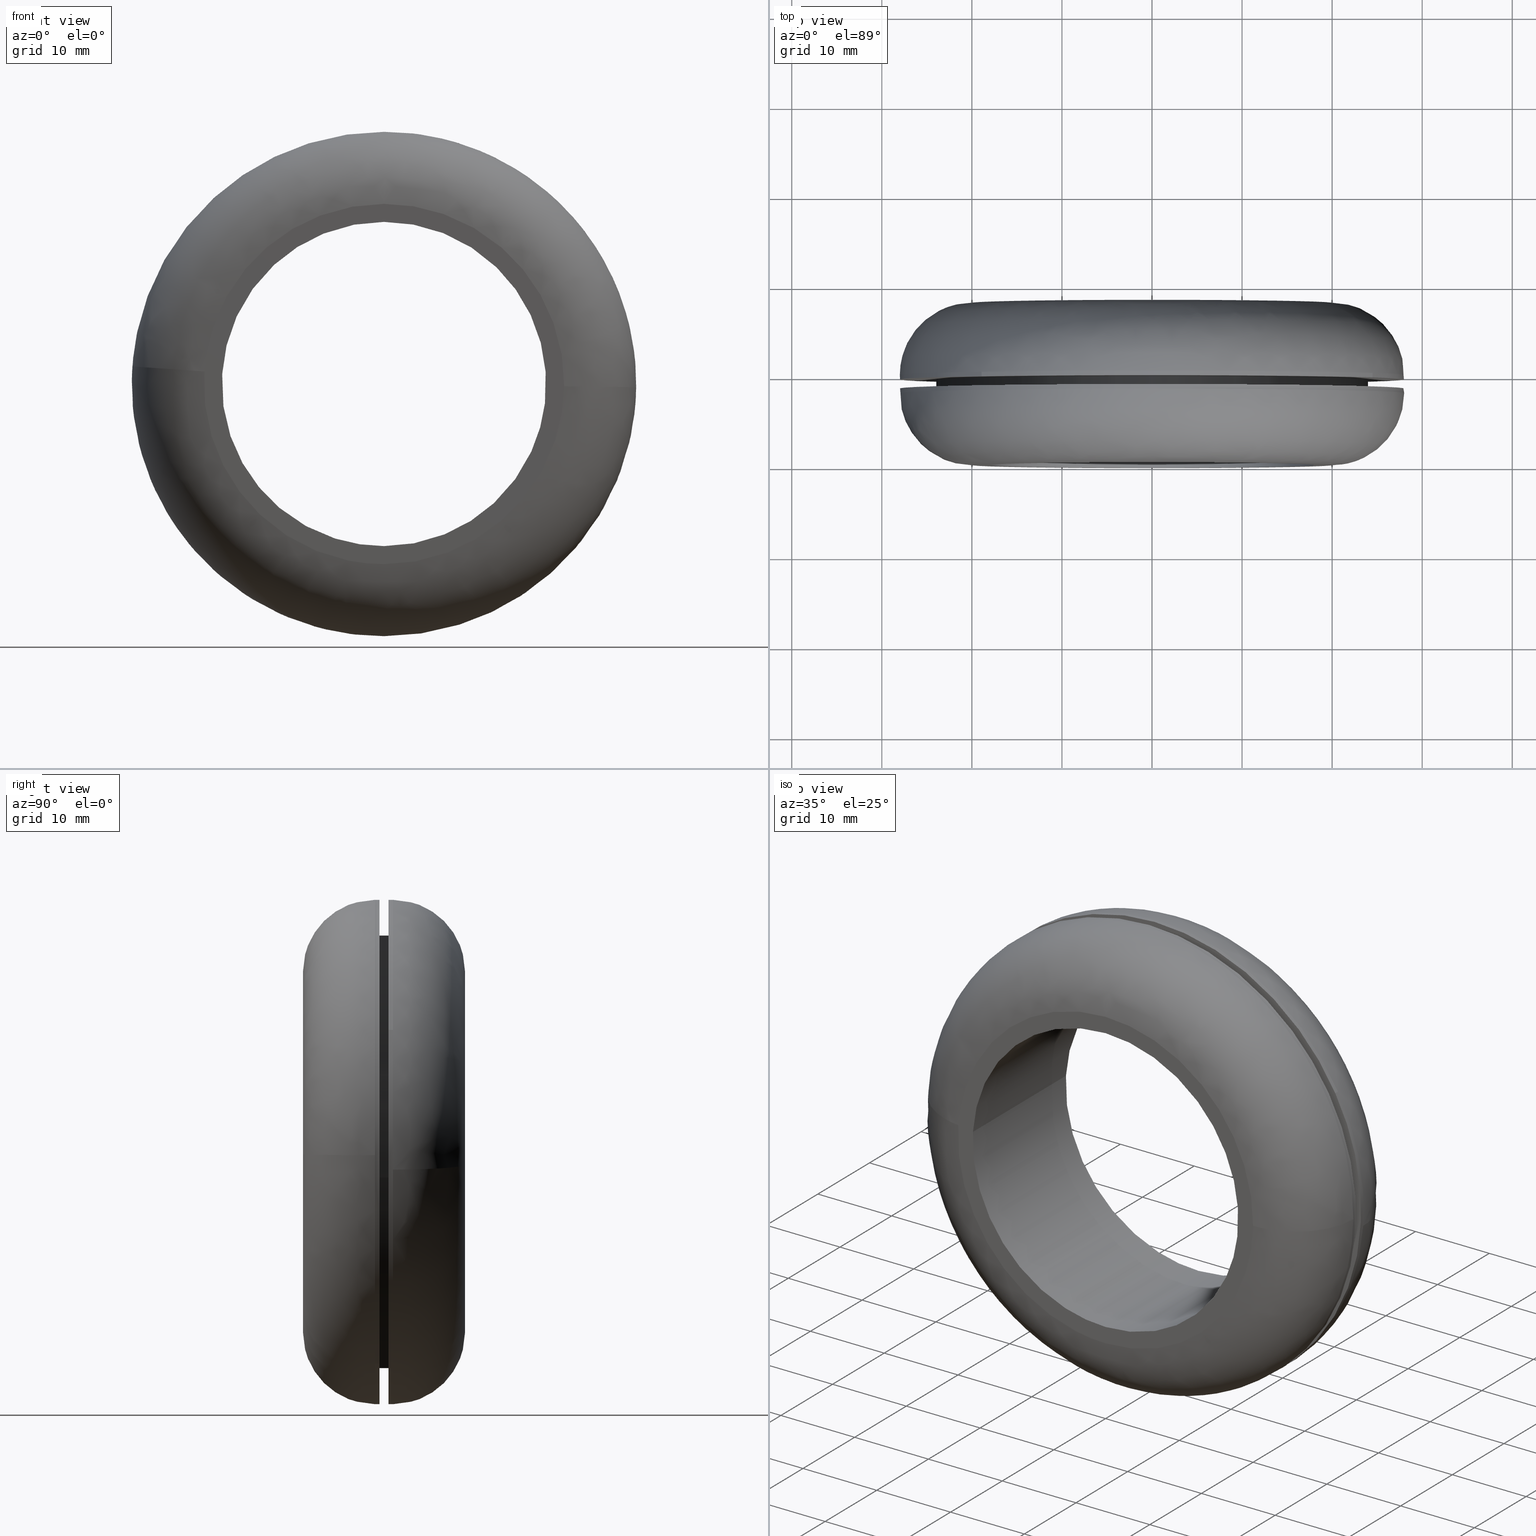
[diagram: canonical four-view strip — front | top / right | iso, engineering-drawing reading convention]
A machine part, canonical four-view strip (front | top / right | iso — engineering-drawing reading convention). The complete STEP part file that produces these views, byte-faithful:
ISO-10303-21;
HEADER;
/****************************************************************
 * Generated by software with PDE/Lib inside                    *
 * PDElib Version 4.4.1-0003, patched  Thursday August 19 11:58 *
 * International Technegroup Inc. (www.iti-oh.com)              *
 ****************************************************************/
FILE_DESCRIPTION((''),'2;1');
FILE_NAME('','2005-12-14T13:40:36',(''),(''),'','CADfix','');
FILE_SCHEMA(('AUTOMOTIVE_DESIGN'));
ENDSEC;
DATA;
#5=APPLICATION_CONTEXT('automotive design');
#6=APPLICATION_PROTOCOL_DEFINITION('Draft International Standard','automotive_design',1998,#5);
#7=PRODUCT_CONTEXT('None',#5,'mechanical');
#8=PRODUCT('grommet','','None',(#7));
#9=PRODUCT_RELATED_PRODUCT_CATEGORY('part','description',(#8));
#10=PRODUCT_DEFINITION_FORMATION('None','None',#8);
#11=PRODUCT_DEFINITION_CONTEXT('part definition',#5,'design');
#12=PRODUCT_DEFINITION('None','None',#10,#11);
#18=(NAMED_UNIT(*)PLANE_ANGLE_UNIT()SI_UNIT($,.RADIAN.));
#19=DIMENSIONAL_EXPONENTS(0.0,0.0,0.0,0.0,0.0,0.0,0.0);
#20=PLANE_ANGLE_MEASURE_WITH_UNIT(PLANE_ANGLE_MEASURE(0.017453292500000),#18);
#24=(CONVERSION_BASED_UNIT('DEGREE',#20)NAMED_UNIT(#19)PLANE_ANGLE_UNIT());
#28=(NAMED_UNIT(*)SI_UNIT($,.STERADIAN.)SOLID_ANGLE_UNIT());
#32=(LENGTH_UNIT()NAMED_UNIT(*)SI_UNIT(.MILLI.,.METRE.));
#34=UNCERTAINTY_MEASURE_WITH_UNIT(LENGTH_MEASURE(0.001000000000000),#32,'DISTANCE_ACCURACY_VALUE','');
#36=(GEOMETRIC_REPRESENTATION_CONTEXT(3)GLOBAL_UNCERTAINTY_ASSIGNED_CONTEXT((#34))GLOBAL_UNIT_ASSIGNED_CONTEXT((#24,#28,#32))REPRESENTATION_CONTEXT('None','None'));
#37=AXIS2_PLACEMENT_3D('',#38,#39,#40);
#38=CARTESIAN_POINT('',(0.0,0.0,0.0));
#39=DIRECTION('',(0.0,0.0,1.0));
#40=DIRECTION('',(1.0,0.0,0.0));
#41=ADVANCED_BREP_SHAPE_REPRESENTATION('',(#37,#1233),#36);
#42=PRODUCT_DEFINITION_SHAPE('','',#12);
#43=SHAPE_DEFINITION_REPRESENTATION(#42,#41);
#44=CARTESIAN_POINT('',(15.196408122809663,8.512500000001223,-23.517422906538968));
#45=CARTESIAN_POINT('',(16.558674342916341,8.512500000001223,-22.637158366715511));
#46=CARTESIAN_POINT('',(17.810190167777389,8.512500000001223,-21.605488334856151));
#47=CARTESIAN_POINT('',(39.415678502633540,8.512500000001223,-3.795298167078766));
#48=CARTESIAN_POINT('',(21.605488334856151,8.512500000001223,17.810190167777389));
#49=CARTESIAN_POINT('',(3.795298167078766,8.512500000001223,39.415678502633540));
#50=CARTESIAN_POINT('',(-17.810190167777389,8.512500000001223,21.605488334856151));
#51=CARTESIAN_POINT('',(-39.415678502633540,8.512500000001223,3.795298167078766));
#52=CARTESIAN_POINT('',(-21.605488334856151,8.512500000001223,-17.810190167777389));
#53=CARTESIAN_POINT('',(15.196408122809663,7.987187499949879,-23.517422906538968));
#54=CARTESIAN_POINT('',(16.558674342916341,7.987187499949878,-22.637158366715511));
#55=CARTESIAN_POINT('',(17.810190167777389,7.987187499949879,-21.605488334856151));
#56=CARTESIAN_POINT('',(39.415678502633540,7.987187499949881,-3.795298167078766));
#57=CARTESIAN_POINT('',(21.605488334856151,7.987187499949879,17.810190167777389));
#58=CARTESIAN_POINT('',(3.795298167078766,7.987187499949881,39.415678502633540));
#59=CARTESIAN_POINT('',(-17.810190167777389,7.987187499949879,21.605488334856151));
#60=CARTESIAN_POINT('',(-39.415678502633540,7.987187499949881,3.795298167078766));
#61=CARTESIAN_POINT('',(-21.605488334856151,7.987187499949879,-17.810190167777389));
#69=(BOUNDED_SURFACE()B_SPLINE_SURFACE(2,1,((#44,#53),(#45,#54),(#46,#55),(#47,#56),(#48,#57),(#49,#58),(#50,#59),(#51,#60),(#52,#61)),.UNSPECIFIED.,.F.,.F.,.U.)B_SPLINE_SURFACE_WITH_KNOTS((3,2,2,2,3),(2,2),(0.0,3.711353518862929,50.103272504649567,96.495191490436198,142.887110476222800),(0.0,1.0),.UNSPECIFIED.)GEOMETRIC_REPRESENTATION_ITEM()RATIONAL_B_SPLINE_SURFACE(((0.956886118190660,0.956886118190660),(0.976568542494924,0.976568542494924),(1.0,1.0),(0.707106781186548,0.707106781186548),(1.0,1.0),(0.707106781186548,0.707106781186548),(1.0,1.0),(0.707106781186548,0.707106781186548),(1.0,1.0)))REPRESENTATION_ITEM('')SURFACE());
#70=CARTESIAN_POINT('',(15.196403853910800,7.999999999991116,-23.517425664999148));
#71=VERTEX_POINT('',#70);
#72=CARTESIAN_POINT('',(27.997789237706659,7.999999999951601,-0.351849116749262));
#73=VERTEX_POINT('',#72);
#74=CARTESIAN_POINT('',(15.196403853910796,7.999999999991116,-23.517425664999145));
#75=CARTESIAN_POINT('',(27.809088232676707,7.999999999977886,-15.367407536654527));
#76=CARTESIAN_POINT('',(27.997789237706659,7.999999999951602,-0.351849116749261));
#84=(BOUNDED_CURVE()B_SPLINE_CURVE(2,(#74,#75,#76),.UNSPECIFIED.,.F.,.U.)B_SPLINE_CURVE_WITH_KNOTS((3,3),(0.092934715246670,0.247784295921535),.UNSPECIFIED.)CURVE()GEOMETRIC_REPRESENTATION_ITEM()RATIONAL_B_SPLINE_CURVE((0.863190116287468,0.816652468351260,0.994854295643567))REPRESENTATION_ITEM(''));
#85=EDGE_CURVE('',#71,#73,#84,.T.);
#86=ORIENTED_EDGE('',*,*,#85,.F.);
#87=CARTESIAN_POINT('',(15.196403883522629,8.500000000000000,-23.517425645865931));
#88=VERTEX_POINT('',#87);
#89=CARTESIAN_POINT('',(15.196403883522629,8.500000000000000,-23.517425645865931));
#90=CARTESIAN_POINT('',(15.196403853910800,7.999999999991116,-23.517425664999148));
#91=QUASI_UNIFORM_CURVE('',1,(#89,#90),.UNSPECIFIED.,.F.,.U.);
#92=EDGE_CURVE('',#88,#71,#91,.T.);
#93=ORIENTED_EDGE('',*,*,#92,.F.);
#94=CARTESIAN_POINT('',(0.0,8.500000000000000,28.0));
#95=VERTEX_POINT('',#94);
#96=CARTESIAN_POINT('',(15.196403883522638,8.500000000000000,-23.517425645865924));
#97=CARTESIAN_POINT('',(27.999999999999996,8.500000000000000,-15.244044848266517));
#98=CARTESIAN_POINT('',(28.0,8.500000000000000,-4.286122E-016));
#99=CARTESIAN_POINT('',(28.000000000000004,8.500000000000000,28.000000000000004));
#100=CARTESIAN_POINT('',(0.0,8.500000000000000,28.0));
#108=(BOUNDED_CURVE()B_SPLINE_CURVE(2,(#96,#97,#98,#99,#100),.UNSPECIFIED.,.F.,.U.)B_SPLINE_CURVE_WITH_KNOTS((3,2,3),(0.092934715438809,0.250000000000000,0.500000000000000),.UNSPECIFIED.)CURVE()GEOMETRIC_REPRESENTATION_ITEM()RATIONAL_B_SPLINE_CURVE((0.863190116171980,0.815986572964088,1.0,0.707106781186547,1.0))REPRESENTATION_ITEM(''));
#109=EDGE_CURVE('',#88,#95,#108,.T.);
#110=ORIENTED_EDGE('',*,*,#109,.T.);
#111=CARTESIAN_POINT('',(-21.605490505307230,8.500000000000000,-17.810187534809039));
#112=VERTEX_POINT('',#111);
#113=CARTESIAN_POINT('',(0.0,8.500000000000000,28.0));
#114=CARTESIAN_POINT('',(-28.000000000000004,8.500000000000000,28.000000000000004));
#115=CARTESIAN_POINT('',(-28.0,8.500000000000000,-4.286122E-016));
#116=CARTESIAN_POINT('',(-28.000000000000004,8.500000000000000,-10.053025298102868));
#117=CARTESIAN_POINT('',(-21.605490505307230,8.500000000000002,-17.810187534809035));
#125=(BOUNDED_CURVE()B_SPLINE_CURVE(2,(#113,#114,#115,#116,#117),.UNSPECIFIED.,.F.,.U.)B_SPLINE_CURVE_WITH_KNOTS((3,2,3),(0.500000000000000,0.750000000000000,0.860504607429005),.UNSPECIFIED.)CURVE()GEOMETRIC_REPRESENTATION_ITEM()RATIONAL_B_SPLINE_CURVE((1.0,0.707106781186547,1.0,0.870535799345607,0.855522724046603))REPRESENTATION_ITEM(''));
#126=EDGE_CURVE('',#95,#112,#125,.T.);
#127=ORIENTED_EDGE('',*,*,#126,.T.);
#128=CARTESIAN_POINT('',(-21.605490563328789,7.999999999999414,-17.810187464423219));
#129=VERTEX_POINT('',#128);
#130=CARTESIAN_POINT('',(-21.605490505307230,8.500000000000000,-17.810187534809039));
#131=CARTESIAN_POINT('',(-21.605490563328789,7.999999999999414,-17.810187464423219));
#132=QUASI_UNIFORM_CURVE('',1,(#130,#131),.UNSPECIFIED.,.F.,.U.);
#133=EDGE_CURVE('',#112,#129,#132,.T.);
#134=ORIENTED_EDGE('',*,*,#133,.T.);
#135=CARTESIAN_POINT('',(-27.931838867531990,7.999999999951132,1.952531044113984));
#136=VERTEX_POINT('',#135);
#137=CARTESIAN_POINT('',(-27.931838867531997,7.999999999951132,1.952531044113983));
#138=CARTESIAN_POINT('',(-28.0,8.0,0.977455244493533));
#139=CARTESIAN_POINT('',(-28.0,8.0,-4.286122E-016));
#140=CARTESIAN_POINT('',(-27.999999999999996,8.0,-10.053025246614713));
#141=CARTESIAN_POINT('',(-21.605490563328789,7.999999999999414,-17.810187464423219));
#149=(BOUNDED_CURVE()B_SPLINE_CURVE(2,(#137,#138,#139,#140,#141),.UNSPECIFIED.,.F.,.U.)B_SPLINE_CURVE_WITH_KNOTS((3,2,3),(0.737833686535115,0.750000000000000,0.860504606936311),.UNSPECIFIED.)CURVE()GEOMETRIC_REPRESENTATION_ITEM()RATIONAL_B_SPLINE_CURVE((0.972879876387025,0.985746277152705,1.0,0.870535799922834,0.855522724180477))REPRESENTATION_ITEM(''));
#150=EDGE_CURVE('',#136,#129,#149,.T.);
#151=ORIENTED_EDGE('',*,*,#150,.F.);
#152=CARTESIAN_POINT('',(0.0,8.0,28.0));
#153=VERTEX_POINT('',#152);
#154=CARTESIAN_POINT('',(0.0,8.0,28.0));
#155=CARTESIAN_POINT('',(-26.111031723462194,8.0,27.999999999999996));
#156=CARTESIAN_POINT('',(-27.931838867531990,7.999999999951132,1.952531044113984));
#164=(BOUNDED_CURVE()B_SPLINE_CURVE(2,(#154,#155,#156),.UNSPECIFIED.,.F.,.U.)B_SPLINE_CURVE_WITH_KNOTS((3,3),(0.500000000000000,0.737833686535114),.UNSPECIFIED.)CURVE()GEOMETRIC_REPRESENTATION_ITEM()RATIONAL_B_SPLINE_CURVE((1.0,0.721360504033843,0.972879876387023))REPRESENTATION_ITEM(''));
#165=EDGE_CURVE('',#153,#136,#164,.T.);
#166=ORIENTED_EDGE('',*,*,#165,.F.);
#167=CARTESIAN_POINT('',(27.997789237706659,7.999999999951602,-0.351849116749261));
#168=CARTESIAN_POINT('',(28.0,8.0,-0.175931503788304));
#169=CARTESIAN_POINT('',(28.0,8.0,-4.286122E-016));
#170=CARTESIAN_POINT('',(28.000000000000004,8.0,28.000000000000004));
#171=CARTESIAN_POINT('',(0.0,8.0,28.0));
#179=(BOUNDED_CURVE()B_SPLINE_CURVE(2,(#167,#168,#169,#170,#171),.UNSPECIFIED.,.F.,.U.)B_SPLINE_CURVE_WITH_KNOTS((3,2,3),(0.247784295921535,0.250000000000000,0.500000000000000),.UNSPECIFIED.)CURVE()GEOMETRIC_REPRESENTATION_ITEM()RATIONAL_B_SPLINE_CURVE((0.994854295643567,0.997404141202081,1.0,0.707106781186547,1.0))REPRESENTATION_ITEM(''));
#180=EDGE_CURVE('',#73,#153,#179,.T.);
#181=ORIENTED_EDGE('',*,*,#180,.F.);
#182=EDGE_LOOP('',(#86,#93,#110,#127,#134,#151,#166,#181));
#183=FACE_OUTER_BOUND('',#182,.T.);
#184=ADVANCED_FACE('',(#183),#69,.T.);
#185=CARTESIAN_POINT('',(-21.605488334856151,8.512500000001223,-17.810190167777389));
#186=CARTESIAN_POINT('',(-5.745661800300758,8.512500000001223,-37.049698222280135));
#187=CARTESIAN_POINT('',(15.196408122809663,8.512500000001223,-23.517422906538968));
#188=CARTESIAN_POINT('',(-21.605488334856151,7.987187499949879,-17.810190167777389));
#189=CARTESIAN_POINT('',(-5.745661800300758,7.987187499949880,-37.049698222280135));
#190=CARTESIAN_POINT('',(15.196408122809663,7.987187499949879,-23.517422906538968));
#198=(BOUNDED_SURFACE()B_SPLINE_SURFACE(2,1,((#185,#188),(#186,#189),(#187,#190)),.UNSPECIFIED.,.F.,.F.,.U.)B_SPLINE_SURFACE_WITH_KNOTS((3,3),(2,2),(0.0,42.633750777619568),(0.0,1.0),.UNSPECIFIED.)GEOMETRIC_REPRESENTATION_ITEM()RATIONAL_B_SPLINE_SURFACE(((1.0,1.0),(0.730538238691624,0.730538238691624),(0.956886118190660,0.956886118190660)))REPRESENTATION_ITEM('')SURFACE());
#199=CARTESIAN_POINT('',(0.0,8.0,-28.0));
#200=VERTEX_POINT('',#199);
#201=CARTESIAN_POINT('',(0.0,8.0,-28.0));
#202=CARTESIAN_POINT('',(8.259327837465289,8.0,-27.999999999999996));
#203=CARTESIAN_POINT('',(15.196403853910796,7.999999999991116,-23.517425664999145));
#211=(BOUNDED_CURVE()B_SPLINE_CURVE(2,(#201,#202,#203),.UNSPECIFIED.,.F.,.U.)B_SPLINE_CURVE_WITH_KNOTS((3,3),(0.0,0.092934715246670),.UNSPECIFIED.)CURVE()GEOMETRIC_REPRESENTATION_ITEM()RATIONAL_B_SPLINE_CURVE((1.0,0.891120208447565,0.863190116287468))REPRESENTATION_ITEM(''));
#212=EDGE_CURVE('',#200,#71,#211,.T.);
#213=ORIENTED_EDGE('',*,*,#212,.F.);
#214=CARTESIAN_POINT('',(-21.605490563328789,7.999999999999414,-17.810187464423219));
#215=CARTESIAN_POINT('',(-13.205659466969523,8.000000000000002,-28.000000000000007));
#216=CARTESIAN_POINT('',(0.0,8.0,-28.0));
#224=(BOUNDED_CURVE()B_SPLINE_CURVE(2,(#214,#215,#216),.UNSPECIFIED.,.F.,.U.)B_SPLINE_CURVE_WITH_KNOTS((3,3),(0.860504606936311,1.0),.UNSPECIFIED.)CURVE()GEOMETRIC_REPRESENTATION_ITEM()RATIONAL_B_SPLINE_CURVE((0.855522724180477,0.836570981263713,1.0))REPRESENTATION_ITEM(''));
#225=EDGE_CURVE('',#129,#200,#224,.T.);
#226=ORIENTED_EDGE('',*,*,#225,.F.);
#227=ORIENTED_EDGE('',*,*,#133,.F.);
#228=CARTESIAN_POINT('',(0.0,8.500000000000000,-28.0));
#229=VERTEX_POINT('',#228);
#230=CARTESIAN_POINT('',(-21.605490505307230,8.500000000000002,-17.810187534809035));
#231=CARTESIAN_POINT('',(-13.205659411215652,8.500000000000002,-28.0));
#232=CARTESIAN_POINT('',(0.0,8.500000000000000,-28.0));
#240=(BOUNDED_CURVE()B_SPLINE_CURVE(2,(#230,#231,#232),.UNSPECIFIED.,.F.,.U.)B_SPLINE_CURVE_WITH_KNOTS((3,3),(0.860504607429005,1.0),.UNSPECIFIED.)CURVE()GEOMETRIC_REPRESENTATION_ITEM()RATIONAL_B_SPLINE_CURVE((0.855522724046603,0.836570981840941,1.0))REPRESENTATION_ITEM(''));
#241=EDGE_CURVE('',#112,#229,#240,.T.);
#242=ORIENTED_EDGE('',*,*,#241,.T.);
#243=CARTESIAN_POINT('',(0.0,8.500000000000000,-28.0));
#244=CARTESIAN_POINT('',(8.259327856627520,8.499999999999998,-27.999999999999996));
#245=CARTESIAN_POINT('',(15.196403883522638,8.500000000000000,-23.517425645865924));
#253=(BOUNDED_CURVE()B_SPLINE_CURVE(2,(#243,#244,#245),.UNSPECIFIED.,.F.,.U.)B_SPLINE_CURVE_WITH_KNOTS((3,3),(0.0,0.092934715438809),.UNSPECIFIED.)CURVE()GEOMETRIC_REPRESENTATION_ITEM()RATIONAL_B_SPLINE_CURVE((1.0,0.891120208222460,0.863190116171980))REPRESENTATION_ITEM(''));
#254=EDGE_CURVE('',#229,#88,#253,.T.);
#255=ORIENTED_EDGE('',*,*,#254,.T.);
#256=ORIENTED_EDGE('',*,*,#92,.T.);
#257=EDGE_LOOP('',(#213,#226,#227,#242,#255,#256));
#258=FACE_OUTER_BOUND('',#257,.T.);
#259=ADVANCED_FACE('',(#258),#198,.T.);
#260=CARTESIAN_POINT('',(23.832228632727997,9.525000000000002,-2.832821631762203));
#261=CARTESIAN_POINT('',(23.913302770766538,9.525000000000000,-2.150753487311464));
#262=CARTESIAN_POINT('',(23.955235162124801,9.525000000000000,-1.465164948836568));
#263=CARTESIAN_POINT('',(25.420400110961371,9.525000000000000,22.490070213288242));
#264=CARTESIAN_POINT('',(1.465164948836568,9.525000000000000,23.955235162124801));
#265=CARTESIAN_POINT('',(-22.490070213288242,9.525000000000000,25.420400110961371));
#266=CARTESIAN_POINT('',(-23.955235162124801,9.525000000000000,1.465164948836567));
#267=CARTESIAN_POINT('',(23.832228632727997,8.474375000000000,-2.832821631762203));
#268=CARTESIAN_POINT('',(23.913302770766538,8.474375000000000,-2.150753487311464));
#269=CARTESIAN_POINT('',(23.955235162124801,8.474374999999998,-1.465164948836568));
#270=CARTESIAN_POINT('',(25.420400110961371,8.474374999999998,22.490070213288242));
#271=CARTESIAN_POINT('',(1.465164948836568,8.474374999999998,23.955235162124801));
#272=CARTESIAN_POINT('',(-22.490070213288242,8.474374999999998,25.420400110961371));
#273=CARTESIAN_POINT('',(-23.955235162124801,8.474374999999998,1.465164948836567));
#281=(BOUNDED_SURFACE()B_SPLINE_SURFACE(2,1,((#260,#267),(#261,#268),(#262,#269),(#263,#270),(#264,#271),(#265,#272),(#266,#273)),.UNSPECIFIED.,.F.,.F.,.U.)B_SPLINE_SURFACE_WITH_KNOTS((3,2,2,3),(2,2),(0.0,1.590580079512687,41.355082067329803,81.119584055146916),(0.0,1.0),.UNSPECIFIED.)GEOMETRIC_REPRESENTATION_ITEM()RATIONAL_B_SPLINE_SURFACE(((0.977505800795127,0.977505800795127),(0.988284271247462,0.988284271247462),(1.0,1.0),(0.707106781186548,0.707106781186548),(1.0,1.0),(0.707106781186548,0.707106781186548),(1.0,1.0)))REPRESENTATION_ITEM('')SURFACE());
#282=CARTESIAN_POINT('',(23.832230903505849,8.500000000001357,-2.832802527817751));
#283=VERTEX_POINT('',#282);
#284=CARTESIAN_POINT('',(0.0,8.500000000000000,24.0));
#285=VERTEX_POINT('',#284);
#286=CARTESIAN_POINT('',(23.832230903505845,8.500000000001357,-2.832802527817750));
#287=CARTESIAN_POINT('',(23.999999999999996,8.500000000000000,-1.421369218692535));
#288=CARTESIAN_POINT('',(24.0,8.500000000000000,-4.286122E-016));
#289=CARTESIAN_POINT('',(23.999999999999996,8.500000000000002,23.999999999999996));
#290=CARTESIAN_POINT('',(0.0,8.500000000000000,24.0));
#298=(BOUNDED_CURVE()B_SPLINE_CURVE(2,(#286,#287,#288,#289,#290),.UNSPECIFIED.,.F.,.U.)B_SPLINE_CURVE_WITH_KNOTS((3,2,3),(0.229562608988868,0.250000000000000,0.500000000000000),.UNSPECIFIED.)CURVE()GEOMETRIC_REPRESENTATION_ITEM()RATIONAL_B_SPLINE_CURVE((0.956027019721121,0.976056107050402,1.0,0.707106781186548,1.0))REPRESENTATION_ITEM(''));
#299=EDGE_CURVE('',#283,#285,#298,.T.);
#300=ORIENTED_EDGE('',*,*,#299,.F.);
#301=CARTESIAN_POINT('',(23.832230875501359,9.500000000000000,-2.832802763419730));
#302=VERTEX_POINT('',#301);
#303=CARTESIAN_POINT('',(23.832230875501359,9.500000000000000,-2.832802763419730));
#304=CARTESIAN_POINT('',(23.832230903505849,8.500000000001357,-2.832802527817751));
#305=QUASI_UNIFORM_CURVE('',1,(#303,#304),.UNSPECIFIED.,.F.,.U.);
#306=EDGE_CURVE('',#302,#283,#305,.T.);
#307=ORIENTED_EDGE('',*,*,#306,.F.);
#308=CARTESIAN_POINT('',(0.0,9.500000000000000,24.0));
#309=VERTEX_POINT('',#308);
#310=CARTESIAN_POINT('',(23.832230875501359,9.500000000000000,-2.832802763419730));
#311=CARTESIAN_POINT('',(23.999999999999996,9.500000000000000,-1.421369337738873));
#312=CARTESIAN_POINT('',(24.0,9.500000000000000,-4.286122E-016));
#313=CARTESIAN_POINT('',(23.999999999999996,9.500000000000000,23.999999999999996));
#314=CARTESIAN_POINT('',(0.0,9.500000000000000,24.0));
#322=(BOUNDED_CURVE()B_SPLINE_CURVE(2,(#310,#311,#312,#313,#314),.UNSPECIFIED.,.F.,.U.)B_SPLINE_CURVE_WITH_KNOTS((3,2,3),(0.229562607318126,0.250000000000000,0.500000000000000),.UNSPECIFIED.)CURVE()GEOMETRIC_REPRESENTATION_ITEM()RATIONAL_B_SPLINE_CURVE((0.956027016446394,0.976056105093006,1.0,0.707106781186548,1.0))REPRESENTATION_ITEM(''));
#323=EDGE_CURVE('',#302,#309,#322,.T.);
#324=ORIENTED_EDGE('',*,*,#323,.T.);
#325=CARTESIAN_POINT('',(-23.955236601031661,9.500000000000000,1.465141422538261));
#326=VERTEX_POINT('',#325);
#327=CARTESIAN_POINT('',(0.0,9.500000000000000,24.0));
#328=CARTESIAN_POINT('',(-22.576967819867498,9.500000000000002,24.000000000000004));
#329=CARTESIAN_POINT('',(-23.955236601031661,9.500000000000000,1.465141422538261));
#337=(BOUNDED_CURVE()B_SPLINE_CURVE(2,(#327,#328,#329),.UNSPECIFIED.,.F.,.U.)B_SPLINE_CURVE_WITH_KNOTS((3,3),(0.500000000000000,0.739333131699197),.UNSPECIFIED.)CURVE()GEOMETRIC_REPRESENTATION_ITEM()RATIONAL_B_SPLINE_CURVE((1.0,0.719603794751673,0.976072404852569))REPRESENTATION_ITEM(''));
#338=EDGE_CURVE('',#309,#326,#337,.T.);
#339=ORIENTED_EDGE('',*,*,#338,.T.);
#340=CARTESIAN_POINT('',(-23.955236619008989,8.499999999999538,1.465141128601935));
#341=VERTEX_POINT('',#340);
#342=CARTESIAN_POINT('',(-23.955236601031661,9.500000000000000,1.465141422538261));
#343=CARTESIAN_POINT('',(-23.955236619008989,8.499999999999538,1.465141128601935));
#344=QUASI_UNIFORM_CURVE('',1,(#342,#343),.UNSPECIFIED.,.F.,.U.);
#345=EDGE_CURVE('',#326,#341,#344,.T.);
#346=ORIENTED_EDGE('',*,*,#345,.T.);
#347=CARTESIAN_POINT('',(0.0,8.500000000000000,24.0));
#348=CARTESIAN_POINT('',(-22.576968097409789,8.500000000000002,23.999999999999996));
#349=CARTESIAN_POINT('',(-23.955236619008996,8.499999999999538,1.465141128601935));
#357=(BOUNDED_CURVE()B_SPLINE_CURVE(2,(#347,#348,#349),.UNSPECIFIED.,.F.,.U.)B_SPLINE_CURVE_WITH_KNOTS((3,3),(0.500000000000000,0.739333133816387),.UNSPECIFIED.)CURVE()GEOMETRIC_REPRESENTATION_ITEM()RATIONAL_B_SPLINE_CURVE((1.0,0.719603792271231,0.976072409390117))REPRESENTATION_ITEM(''));
#358=EDGE_CURVE('',#285,#341,#357,.T.);
#359=ORIENTED_EDGE('',*,*,#358,.F.);
#360=EDGE_LOOP('',(#300,#307,#324,#339,#346,#359));
#361=FACE_OUTER_BOUND('',#360,.T.);
#362=ADVANCED_FACE('',(#361),#281,.T.);
#363=CARTESIAN_POINT('',(-23.955235162124801,9.525000000000000,1.465164948836567));
#364=CARTESIAN_POINT('',(-25.420400110961371,9.525000000000000,-22.490070213288242));
#365=CARTESIAN_POINT('',(-1.465164948836568,9.525000000000000,-23.955235162124801));
#366=CARTESIAN_POINT('',(21.157043780148033,9.525000000000000,-25.338868721580656));
#367=CARTESIAN_POINT('',(23.832228632727997,9.525000000000002,-2.832821631762203));
#368=CARTESIAN_POINT('',(-23.955235162124801,8.474374999999998,1.465164948836567));
#369=CARTESIAN_POINT('',(-25.420400110961371,8.474374999999998,-22.490070213288242));
#370=CARTESIAN_POINT('',(-1.465164948836568,8.474374999999998,-23.955235162124801));
#371=CARTESIAN_POINT('',(21.157043780148033,8.474374999999998,-25.338868721580656));
#372=CARTESIAN_POINT('',(23.832228632727997,8.474375000000000,-2.832821631762203));
#380=(BOUNDED_SURFACE()B_SPLINE_SURFACE(2,1,((#363,#368),(#364,#369),(#365,#370),(#366,#371),(#367,#372)),.UNSPECIFIED.,.F.,.F.,.U.)B_SPLINE_SURFACE_WITH_KNOTS((3,2,3),(2,2),(0.0,39.764501987817113,77.938423896121549),(0.0,1.0),.UNSPECIFIED.)GEOMETRIC_REPRESENTATION_ITEM()RATIONAL_B_SPLINE_SURFACE(((1.0,1.0),(0.707106781186548,0.707106781186548),(1.0,1.0),(0.718822509939086,0.718822509939086),(0.977505800795127,0.977505800795127)))REPRESENTATION_ITEM('')SURFACE());
#381=CARTESIAN_POINT('',(0.0,8.500000000000000,-24.0));
#382=VERTEX_POINT('',#381);
#383=CARTESIAN_POINT('',(0.0,8.500000000000000,-24.0));
#384=CARTESIAN_POINT('',(21.316205830208602,8.499999999999998,-24.0));
#385=CARTESIAN_POINT('',(23.832230903505845,8.500000000001357,-2.832802527817750));
#393=(BOUNDED_CURVE()B_SPLINE_CURVE(2,(#383,#384,#385),.UNSPECIFIED.,.F.,.U.)B_SPLINE_CURVE_WITH_KNOTS((3,3),(0.0,0.229562608988868),.UNSPECIFIED.)CURVE()GEOMETRIC_REPRESENTATION_ITEM()RATIONAL_B_SPLINE_CURVE((1.0,0.731050674136146,0.956027019721121))REPRESENTATION_ITEM(''));
#394=EDGE_CURVE('',#382,#283,#393,.T.);
#395=ORIENTED_EDGE('',*,*,#394,.F.);
#396=CARTESIAN_POINT('',(-23.955236619008996,8.499999999999538,1.465141128601935));
#397=CARTESIAN_POINT('',(-24.0,8.500000000000000,0.733254375654913));
#398=CARTESIAN_POINT('',(-24.0,8.500000000000000,-4.286122E-016));
#399=CARTESIAN_POINT('',(-23.999999999999996,8.500000000000002,-23.999999999999996));
#400=CARTESIAN_POINT('',(0.0,8.500000000000000,-24.0));
#408=(BOUNDED_CURVE()B_SPLINE_CURVE(2,(#396,#397,#398,#399,#400),.UNSPECIFIED.,.F.,.U.)B_SPLINE_CURVE_WITH_KNOTS((3,2,3),(0.739333133816387,0.750000000000000,1.0),.UNSPECIFIED.)CURVE()GEOMETRIC_REPRESENTATION_ITEM()RATIONAL_B_SPLINE_CURVE((0.976072409390117,0.987502988915317,1.0,0.707106781186548,1.0))REPRESENTATION_ITEM(''));
#409=EDGE_CURVE('',#341,#382,#408,.T.);
#410=ORIENTED_EDGE('',*,*,#409,.F.);
#411=ORIENTED_EDGE('',*,*,#345,.F.);
#412=CARTESIAN_POINT('',(0.0,9.500000000000000,-24.0));
#413=VERTEX_POINT('',#412);
#414=CARTESIAN_POINT('',(-23.955236601031661,9.500000000000000,1.465141422538261));
#415=CARTESIAN_POINT('',(-23.999999999999993,9.500000000000000,0.733254523035143));
#416=CARTESIAN_POINT('',(-24.0,9.500000000000000,-4.286122E-016));
#417=CARTESIAN_POINT('',(-23.999999999999996,9.500000000000000,-23.999999999999996));
#418=CARTESIAN_POINT('',(0.0,9.500000000000000,-24.0));
#426=(BOUNDED_CURVE()B_SPLINE_CURVE(2,(#414,#415,#416,#417,#418),.UNSPECIFIED.,.F.,.U.)B_SPLINE_CURVE_WITH_KNOTS((3,2,3),(0.739333131699197,0.750000000000000,1.0),.UNSPECIFIED.)CURVE()GEOMETRIC_REPRESENTATION_ITEM()RATIONAL_B_SPLINE_CURVE((0.976072404852569,0.987502986434874,1.0,0.707106781186548,1.0))REPRESENTATION_ITEM(''));
#427=EDGE_CURVE('',#326,#413,#426,.T.);
#428=ORIENTED_EDGE('',*,*,#427,.T.);
#429=CARTESIAN_POINT('',(0.0,9.500000000000000,-24.0));
#430=CARTESIAN_POINT('',(21.316205617996250,9.499999999999998,-24.0));
#431=CARTESIAN_POINT('',(23.832230875501359,9.500000000000000,-2.832802763419730));
#439=(BOUNDED_CURVE()B_SPLINE_CURVE(2,(#429,#430,#431),.UNSPECIFIED.,.F.,.U.)B_SPLINE_CURVE_WITH_KNOTS((3,3),(0.0,0.229562607318126),.UNSPECIFIED.)CURVE()GEOMETRIC_REPRESENTATION_ITEM()RATIONAL_B_SPLINE_CURVE((1.0,0.731050676093542,0.956027016446394))REPRESENTATION_ITEM(''));
#440=EDGE_CURVE('',#413,#302,#439,.T.);
#441=ORIENTED_EDGE('',*,*,#440,.T.);
#442=ORIENTED_EDGE('',*,*,#306,.T.);
#443=EDGE_LOOP('',(#395,#410,#411,#428,#441,#442));
#444=FACE_OUTER_BOUND('',#443,.T.);
#445=ADVANCED_FACE('',(#444),#380,.T.);
#446=CARTESIAN_POINT('',(24.498499968407646,10.012500000000001,13.558152503122615));
#447=CARTESIAN_POINT('',(22.889151348772891,10.012499999999999,16.466117072646263));
#448=CARTESIAN_POINT('',(20.643765430683459,10.012499999999999,18.916525813238479));
#449=CARTESIAN_POINT('',(1.727239617444979,10.012499999999999,39.560291243921945));
#450=CARTESIAN_POINT('',(-18.916525813238479,10.012499999999999,20.643765430683459));
#451=CARTESIAN_POINT('',(24.498499968407646,9.487187499999997,13.558152503122615));
#452=CARTESIAN_POINT('',(22.889151348772891,9.487187499999997,16.466117072646263));
#453=CARTESIAN_POINT('',(20.643765430683459,9.487187499999997,18.916525813238479));
#454=CARTESIAN_POINT('',(1.727239617444979,9.487187499999997,39.560291243921945));
#455=CARTESIAN_POINT('',(-18.916525813238479,9.487187499999997,20.643765430683459));
#463=(BOUNDED_SURFACE()B_SPLINE_SURFACE(2,1,((#446,#451),(#447,#452),(#448,#453),(#449,#454),(#450,#455)),.UNSPECIFIED.,.F.,.F.,.U.)B_SPLINE_SURFACE_WITH_KNOTS((3,2,3),(2,2),(0.0,7.422707037725871,53.814626023512503),(0.0,1.0),.UNSPECIFIED.)GEOMETRIC_REPRESENTATION_ITEM()RATIONAL_B_SPLINE_SURFACE(((0.921270302782944,0.921270302782944),(0.953137084989848,0.953137084989848),(1.0,1.0),(0.707106781186548,0.707106781186548),(1.0,1.0)))REPRESENTATION_ITEM('')SURFACE());
#464=CARTESIAN_POINT('',(24.498502475703919,9.999992431047673,13.558147972626561));
#465=VERTEX_POINT('',#464);
#466=CARTESIAN_POINT('',(0.0,10.0,28.0));
#467=VERTEX_POINT('',#466);
#468=CARTESIAN_POINT('',(24.498502475703926,9.999992431047673,13.558147972626557));
#469=CARTESIAN_POINT('',(16.505982648014054,9.999996875512034,28.000000000000320));
#470=CARTESIAN_POINT('',(0.0,10.0,28.0));
#478=(BOUNDED_CURVE()B_SPLINE_CURVE(2,(#468,#469,#470),.UNSPECIFIED.,.F.,.U.)B_SPLINE_CURVE_WITH_KNOTS((3,3),(0.332484260513067,0.500000000000000),.UNSPECIFIED.)CURVE()GEOMETRIC_REPRESENTATION_ITEM()RATIONAL_B_SPLINE_CURVE((0.870495160132629,0.803743103439025,1.0))REPRESENTATION_ITEM(''));
#479=EDGE_CURVE('',#465,#467,#478,.T.);
#480=ORIENTED_EDGE('',*,*,#479,.T.);
#481=CARTESIAN_POINT('',(-18.916524673993550,9.999994661897787,20.643766474604121));
#482=VERTEX_POINT('',#481);
#483=CARTESIAN_POINT('',(0.0,10.0,28.0));
#484=CARTESIAN_POINT('',(-10.888603602444862,9.999997779890196,27.999999999999947));
#485=CARTESIAN_POINT('',(-18.916524673993546,9.999994661897787,20.643766474604117));
#493=(BOUNDED_CURVE()B_SPLINE_CURVE(2,(#483,#484,#485),.UNSPECIFIED.,.F.,.U.)B_SPLINE_CURVE_WITH_KNOTS((3,3),(0.500000000000000,0.618415200753256),.UNSPECIFIED.)CURVE()GEOMETRIC_REPRESENTATION_ITEM()RATIONAL_B_SPLINE_CURVE((1.0,0.861267962779751,0.853959781866254))REPRESENTATION_ITEM(''));
#494=EDGE_CURVE('',#467,#482,#493,.T.);
#495=ORIENTED_EDGE('',*,*,#494,.T.);
#496=CARTESIAN_POINT('',(-18.916524704206171,9.500000000000000,20.643766446924250));
#497=VERTEX_POINT('',#496);
#498=CARTESIAN_POINT('',(-18.916524673993550,9.999994661897787,20.643766474604121));
#499=CARTESIAN_POINT('',(-18.916524704206171,9.500000000000000,20.643766446924250));
#500=QUASI_UNIFORM_CURVE('',1,(#498,#499),.UNSPECIFIED.,.F.,.U.);
#501=EDGE_CURVE('',#482,#497,#500,.T.);
#502=ORIENTED_EDGE('',*,*,#501,.T.);
#503=CARTESIAN_POINT('',(0.0,9.500000000000000,28.0));
#504=VERTEX_POINT('',#503);
#505=CARTESIAN_POINT('',(0.0,9.500000000000000,28.0));
#506=CARTESIAN_POINT('',(-10.888603626030772,9.500000000000000,27.999999999999996));
#507=CARTESIAN_POINT('',(-18.916524704206207,9.500000000000000,20.643766446924278));
#515=(BOUNDED_CURVE()B_SPLINE_CURVE(2,(#505,#506,#507),.UNSPECIFIED.,.F.,.U.)B_SPLINE_CURVE_WITH_KNOTS((3,3),(0.500000000000000,0.618415200974131),.UNSPECIFIED.)CURVE()GEOMETRIC_REPRESENTATION_ITEM()RATIONAL_B_SPLINE_CURVE((1.0,0.861267962520980,0.853959781838990))REPRESENTATION_ITEM(''));
#516=EDGE_CURVE('',#504,#497,#515,.T.);
#517=ORIENTED_EDGE('',*,*,#516,.F.);
#518=CARTESIAN_POINT('',(24.498502278124882,9.500000000000000,13.558148329646160));
#519=VERTEX_POINT('',#518);
#520=CARTESIAN_POINT('',(24.498502278124885,9.500000000000000,13.558148329646158));
#521=CARTESIAN_POINT('',(16.505982373092507,9.499999999999998,28.000000000000007));
#522=CARTESIAN_POINT('',(0.0,9.500000000000000,28.0));
#530=(BOUNDED_CURVE()B_SPLINE_CURVE(2,(#520,#521,#522),.UNSPECIFIED.,.F.,.U.)B_SPLINE_CURVE_WITH_KNOTS((3,3),(0.332484262755645,0.500000000000000),.UNSPECIFIED.)CURVE()GEOMETRIC_REPRESENTATION_ITEM()RATIONAL_B_SPLINE_CURVE((0.870495158345373,0.803743106066369,1.0))REPRESENTATION_ITEM(''));
#531=EDGE_CURVE('',#519,#504,#530,.T.);
#532=ORIENTED_EDGE('',*,*,#531,.F.);
#533=CARTESIAN_POINT('',(24.498502475703919,9.999992431047673,13.558147972626561));
#534=CARTESIAN_POINT('',(24.498502278124882,9.500000000000000,13.558148329646160));
#535=QUASI_UNIFORM_CURVE('',1,(#533,#534),.UNSPECIFIED.,.F.,.U.);
#536=EDGE_CURVE('',#465,#519,#535,.T.);
#537=ORIENTED_EDGE('',*,*,#536,.F.);
#538=EDGE_LOOP('',(#480,#495,#502,#517,#532,#537));
#539=FACE_OUTER_BOUND('',#538,.T.);
#540=ADVANCED_FACE('',(#539),#463,.T.);
#541=CARTESIAN_POINT('',(-18.916525813238479,10.012499999999999,20.643765430683459));
#542=CARTESIAN_POINT('',(-39.560291243921945,10.012499999999999,1.727239617444979));
#543=CARTESIAN_POINT('',(-20.643765430683459,10.012499999999999,-18.916525813238479));
#544=CARTESIAN_POINT('',(-1.727239617444979,10.012499999999999,-39.560291243921945));
#545=CARTESIAN_POINT('',(18.916525813238479,10.012499999999999,-20.643765430683459));
#546=CARTESIAN_POINT('',(35.179475296582254,10.012499999999998,-5.741517837625004));
#547=CARTESIAN_POINT('',(24.498499968407646,10.012500000000001,13.558152503122615));
#548=CARTESIAN_POINT('',(-18.916525813238479,9.487187499999997,20.643765430683459));
#549=CARTESIAN_POINT('',(-39.560291243921945,9.487187499999997,1.727239617444979));
#550=CARTESIAN_POINT('',(-20.643765430683459,9.487187499999997,-18.916525813238479));
#551=CARTESIAN_POINT('',(-1.727239617444979,9.487187499999997,-39.560291243921945));
#552=CARTESIAN_POINT('',(18.916525813238479,9.487187499999997,-20.643765430683459));
#553=CARTESIAN_POINT('',(35.179475296582254,9.487187499999996,-5.741517837625004));
#554=CARTESIAN_POINT('',(24.498499968407646,9.487187499999997,13.558152503122615));
#562=(BOUNDED_SURFACE()B_SPLINE_SURFACE(2,1,((#541,#548),(#542,#549),(#543,#550),(#544,#551),(#545,#552),(#546,#553),(#547,#554)),.UNSPECIFIED.,.F.,.F.,.U.)B_SPLINE_SURFACE_WITH_KNOTS((3,2,2,3),(2,2),(0.0,46.391918985786631,92.783837971573263,131.753049919634010),(0.0,1.0),.UNSPECIFIED.)GEOMETRIC_REPRESENTATION_ITEM()RATIONAL_B_SPLINE_SURFACE(((1.0,1.0),(0.707106781186548,0.707106781186548),(1.0,1.0),(0.707106781186548,0.707106781186548),(1.0,1.0),(0.753969696196700,0.753969696196700),(0.921270302782944,0.921270302782944)))REPRESENTATION_ITEM('')SURFACE());
#563=CARTESIAN_POINT('',(27.931839311277209,9.999988632645632,-1.952524695885787));
#564=VERTEX_POINT('',#563);
#565=CARTESIAN_POINT('',(27.931839311277212,9.999988632645632,-1.952524695885788));
#566=CARTESIAN_POINT('',(27.999999999983434,9.999988817671708,-0.977452058754858));
#567=CARTESIAN_POINT('',(27.999999999983729,9.999989016083207,1.137140E-012));
#568=CARTESIAN_POINT('',(27.999999999985899,9.999990483937195,7.231218517312033));
#569=CARTESIAN_POINT('',(24.498502475703926,9.999992431047673,13.558147972626557));
#577=(BOUNDED_CURVE()B_SPLINE_CURVE(2,(#565,#566,#567,#568,#569),.UNSPECIFIED.,.F.,.U.)B_SPLINE_CURVE_WITH_KNOTS((3,2,3),(0.237833725622559,0.250000000000000,0.332484260513067),.UNSPECIFIED.)CURVE()GEOMETRIC_REPRESENTATION_ITEM()RATIONAL_B_SPLINE_CURVE((0.972879959060353,0.985746322946495,1.0,0.903363677747522,0.870495160132629))REPRESENTATION_ITEM(''));
#578=EDGE_CURVE('',#564,#465,#577,.T.);
#579=ORIENTED_EDGE('',*,*,#578,.T.);
#580=ORIENTED_EDGE('',*,*,#536,.T.);
#581=CARTESIAN_POINT('',(0.0,9.500000000000000,-28.0));
#582=VERTEX_POINT('',#581);
#583=CARTESIAN_POINT('',(0.0,9.500000000000000,-28.0));
#584=CARTESIAN_POINT('',(28.000000000000004,9.500000000000000,-28.000000000000004));
#585=CARTESIAN_POINT('',(28.0,9.500000000000000,-4.286122E-016));
#586=CARTESIAN_POINT('',(28.000000000000007,9.500000000000002,7.231218734944354));
#587=CARTESIAN_POINT('',(24.498502278124885,9.500000000000000,13.558148329646158));
#595=(BOUNDED_CURVE()B_SPLINE_CURVE(2,(#583,#584,#585,#586,#587),.UNSPECIFIED.,.F.,.U.)B_SPLINE_CURVE_WITH_KNOTS((3,2,3),(0.0,0.250000000000000,0.332484262755645),.UNSPECIFIED.)CURVE()GEOMETRIC_REPRESENTATION_ITEM()RATIONAL_B_SPLINE_CURVE((1.0,0.707106781186547,1.0,0.903363675120178,0.870495158345373))REPRESENTATION_ITEM(''));
#596=EDGE_CURVE('',#582,#519,#595,.T.);
#597=ORIENTED_EDGE('',*,*,#596,.F.);
#598=CARTESIAN_POINT('',(-18.916524704206207,9.500000000000000,20.643766446924278));
#599=CARTESIAN_POINT('',(-27.999999999999996,9.500000000000000,12.320295762700807));
#600=CARTESIAN_POINT('',(-28.0,9.500000000000000,-4.286122E-016));
#601=CARTESIAN_POINT('',(-28.000000000000004,9.500000000000000,-28.000000000000004));
#602=CARTESIAN_POINT('',(0.0,9.500000000000000,-28.0));
#610=(BOUNDED_CURVE()B_SPLINE_CURVE(2,(#598,#599,#600,#601,#602),.UNSPECIFIED.,.F.,.U.)B_SPLINE_CURVE_WITH_KNOTS((3,2,3),(0.618415200974131,0.750000000000000,1.0),.UNSPECIFIED.)CURVE()GEOMETRIC_REPRESENTATION_ITEM()RATIONAL_B_SPLINE_CURVE((0.853959781838990,0.845838818665568,1.0,0.707106781186547,1.0))REPRESENTATION_ITEM(''));
#611=EDGE_CURVE('',#497,#582,#610,.T.);
#612=ORIENTED_EDGE('',*,*,#611,.F.);
#613=ORIENTED_EDGE('',*,*,#501,.F.);
#614=CARTESIAN_POINT('',(-27.997789473912182,9.999988724574578,0.351830318831164));
#615=VERTEX_POINT('',#614);
#616=CARTESIAN_POINT('',(-18.916524673993546,9.999994661897787,20.643766474604117));
#617=CARTESIAN_POINT('',(-27.845611647233294,9.999991193900494,12.461766632005810));
#618=CARTESIAN_POINT('',(-27.997789473912178,9.999988724574578,0.351830318831164));
#626=(BOUNDED_CURVE()B_SPLINE_CURVE(2,(#616,#617,#618),.UNSPECIFIED.,.F.,.U.)B_SPLINE_CURVE_WITH_KNOTS((3,3),(0.618415200753256,0.747784414000057),.UNSPECIFIED.)CURVE()GEOMETRIC_REPRESENTATION_ITEM()RATIONAL_B_SPLINE_CURVE((0.853959781866254,0.845975556791852,0.994854567414644))REPRESENTATION_ITEM(''));
#627=EDGE_CURVE('',#482,#615,#626,.T.);
#628=ORIENTED_EDGE('',*,*,#627,.T.);
#629=CARTESIAN_POINT('',(0.0,10.0,-28.0));
#630=VERTEX_POINT('',#629);
#631=CARTESIAN_POINT('',(-27.997789473912178,9.999988724574578,0.351830318831164));
#632=CARTESIAN_POINT('',(-27.999999999977870,9.999988759553625,0.175922103708228));
#633=CARTESIAN_POINT('',(-27.999999999977931,9.999988794974991,-2.697971E-013));
#634=CARTESIAN_POINT('',(-27.999999999989040,9.999994432687702,-28.000000000000128));
#635=CARTESIAN_POINT('',(0.0,10.0,-28.0));
#643=(BOUNDED_CURVE()B_SPLINE_CURVE(2,(#631,#632,#633,#634,#635),.UNSPECIFIED.,.F.,.U.)B_SPLINE_CURVE_WITH_KNOTS((3,2,3),(0.747784414000057,0.750000000000000,1.0),.UNSPECIFIED.)CURVE()GEOMETRIC_REPRESENTATION_ITEM()RATIONAL_B_SPLINE_CURVE((0.994854567414644,0.997404279539675,1.0,0.707106781186547,1.0))REPRESENTATION_ITEM(''));
#644=EDGE_CURVE('',#615,#630,#643,.T.);
#645=ORIENTED_EDGE('',*,*,#644,.T.);
#646=CARTESIAN_POINT('',(0.0,10.0,-28.0));
#647=CARTESIAN_POINT('',(26.111037672339410,9.999994316322818,-27.999999999999407));
#648=CARTESIAN_POINT('',(27.931839311277212,9.999988632645632,-1.952524695885788));
#656=(BOUNDED_CURVE()B_SPLINE_CURVE(2,(#646,#647,#648),.UNSPECIFIED.,.F.,.U.)B_SPLINE_CURVE_WITH_KNOTS((3,3),(0.0,0.237833725622559),.UNSPECIFIED.)CURVE()GEOMETRIC_REPRESENTATION_ITEM()RATIONAL_B_SPLINE_CURVE((1.0,0.721360458240052,0.972879959060353))REPRESENTATION_ITEM(''));
#657=EDGE_CURVE('',#630,#564,#656,.T.);
#658=ORIENTED_EDGE('',*,*,#657,.T.);
#659=EDGE_LOOP('',(#579,#580,#597,#612,#613,#628,#645,#658));
#660=FACE_OUTER_BOUND('',#659,.T.);
#661=ADVANCED_FACE('',(#660),#562,.T.);
#662=CARTESIAN_POINT('',(17.874171474545992,18.450000000000003,-2.124616223821653));
#663=CARTESIAN_POINT('',(17.934977078074905,18.450000000000010,-1.613065115483598));
#664=CARTESIAN_POINT('',(17.966426371593599,18.449999999999999,-1.098873711627426));
#665=CARTESIAN_POINT('',(19.065300083221029,18.450000000000010,16.867552659966176));
#666=CARTESIAN_POINT('',(1.098873711627426,18.449999999999999,17.966426371593599));
#667=CARTESIAN_POINT('',(-16.867552659966176,18.450000000000010,19.065300083221029));
#668=CARTESIAN_POINT('',(-17.966426371593599,18.449999999999999,1.098873711627425));
#669=CARTESIAN_POINT('',(17.874171474545992,-0.461250000000007,-2.124616223821653));
#670=CARTESIAN_POINT('',(17.934977078074905,-0.461250000000007,-1.613065115483598));
#671=CARTESIAN_POINT('',(17.966426371593599,-0.461250000000007,-1.098873711627426));
#672=CARTESIAN_POINT('',(19.065300083221029,-0.461250000000007,16.867552659966176));
#673=CARTESIAN_POINT('',(1.098873711627426,-0.461250000000007,17.966426371593599));
#674=CARTESIAN_POINT('',(-16.867552659966176,-0.461250000000007,19.065300083221029));
#675=CARTESIAN_POINT('',(-17.966426371593599,-0.461250000000007,1.098873711627425));
#683=(BOUNDED_SURFACE()B_SPLINE_SURFACE(2,1,((#662,#669),(#663,#670),(#664,#671),(#665,#672),(#666,#673),(#667,#674),(#668,#675)),.UNSPECIFIED.,.F.,.F.,.U.)B_SPLINE_SURFACE_WITH_KNOTS((3,2,2,3),(2,2),(0.0,1.192935059634515,31.016311550497349,60.839688041360183),(0.0,18.911250000000010),.UNSPECIFIED.)GEOMETRIC_REPRESENTATION_ITEM()RATIONAL_B_SPLINE_SURFACE(((0.977505800795127,0.977505800795127),(0.988284271247462,0.988284271247462),(1.0,1.0),(0.707106781186548,0.707106781186548),(1.0,1.0),(0.707106781186548,0.707106781186548),(1.0,1.0)))REPRESENTATION_ITEM('')SURFACE());
#684=CARTESIAN_POINT('',(17.874173591016429,18.000000000000089,-2.124598418028458));
#685=VERTEX_POINT('',#684);
#686=CARTESIAN_POINT('',(0.0,18.0,18.0));
#687=VERTEX_POINT('',#686);
#688=CARTESIAN_POINT('',(17.874173591016433,18.000000000000089,-2.124598418028459));
#689=CARTESIAN_POINT('',(18.0,18.0,-1.066025156718830));
#690=CARTESIAN_POINT('',(18.0,18.0,-4.286122E-016));
#691=CARTESIAN_POINT('',(18.000000000000007,18.000000000000007,18.000000000000007));
#692=CARTESIAN_POINT('',(0.0,18.0,18.0));
#700=(BOUNDED_CURVE()B_SPLINE_CURVE(2,(#688,#689,#690,#691,#692),.UNSPECIFIED.,.F.,.U.)B_SPLINE_CURVE_WITH_KNOTS((3,2,3),(0.229562641872376,0.250000000000000,0.500000000000000),.UNSPECIFIED.)CURVE()GEOMETRIC_REPRESENTATION_ITEM()RATIONAL_B_SPLINE_CURVE((0.956027084174235,0.976056145575827,1.0,0.707106781186547,1.0))REPRESENTATION_ITEM(''));
#701=EDGE_CURVE('',#685,#687,#700,.T.);
#702=ORIENTED_EDGE('',*,*,#701,.F.);
#703=CARTESIAN_POINT('',(17.874173565500872,-5.770390E-015,-2.124598632691822));
#704=VERTEX_POINT('',#703);
#705=CARTESIAN_POINT('',(17.874173591016429,18.000000000000089,-2.124598418028458));
#706=CARTESIAN_POINT('',(17.874173565500872,-5.770390E-015,-2.124598632691822));
#707=QUASI_UNIFORM_CURVE('',1,(#705,#706),.UNSPECIFIED.,.F.,.U.);
#708=EDGE_CURVE('',#685,#704,#707,.T.);
#709=ORIENTED_EDGE('',*,*,#708,.T.);
#710=CARTESIAN_POINT('',(0.0,-3.306437E-015,18.0));
#711=VERTEX_POINT('',#710);
#712=CARTESIAN_POINT('',(17.874173565500875,-5.770390E-015,-2.124598632691822));
#713=CARTESIAN_POINT('',(18.0,-3.306437E-015,-1.066025265185177));
#714=CARTESIAN_POINT('',(18.0,-3.306437E-015,-4.286122E-016));
#715=CARTESIAN_POINT('',(18.000000000000007,-3.306437E-015,18.000000000000007));
#716=CARTESIAN_POINT('',(0.0,-3.306437E-015,18.0));
#724=(BOUNDED_CURVE()B_SPLINE_CURVE(2,(#712,#713,#714,#715,#716),.UNSPECIFIED.,.F.,.U.)B_SPLINE_CURVE_WITH_KNOTS((3,2,3),(0.229562639842698,0.250000000000000,0.500000000000000),.UNSPECIFIED.)CURVE()GEOMETRIC_REPRESENTATION_ITEM()RATIONAL_B_SPLINE_CURVE((0.956027080195977,0.976056143197912,1.0,0.707106781186547,1.0))REPRESENTATION_ITEM(''));
#725=EDGE_CURVE('',#704,#711,#724,.T.);
#726=ORIENTED_EDGE('',*,*,#725,.T.);
#727=CARTESIAN_POINT('',(-17.966427366884538,-2.652419E-015,1.098857438522586));
#728=VERTEX_POINT('',#727);
#729=CARTESIAN_POINT('',(0.0,-3.306437E-015,18.0));
#730=CARTESIAN_POINT('',(-16.932724569782611,-3.306437E-015,18.0));
#731=CARTESIAN_POINT('',(-17.966427366884538,-2.652419E-015,1.098857438522586));
#739=(BOUNDED_CURVE()B_SPLINE_CURVE(2,(#729,#730,#731),.UNSPECIFIED.,.F.,.U.)B_SPLINE_CURVE_WITH_KNOTS((3,3),(0.500000000000000,0.739333118526377),.UNSPECIFIED.)CURVE()GEOMETRIC_REPRESENTATION_ITEM()RATIONAL_B_SPLINE_CURVE((1.0,0.719603810184591,0.976072376620669))REPRESENTATION_ITEM(''));
#740=EDGE_CURVE('',#711,#728,#739,.T.);
#741=ORIENTED_EDGE('',*,*,#740,.T.);
#742=CARTESIAN_POINT('',(-17.966427379012210,17.999999999999918,1.098857240230970));
#743=VERTEX_POINT('',#742);
#744=CARTESIAN_POINT('',(-17.966427379012210,17.999999999999918,1.098857240230970));
#745=CARTESIAN_POINT('',(-17.966427366884538,-2.652419E-015,1.098857438522586));
#746=QUASI_UNIFORM_CURVE('',1,(#744,#745),.UNSPECIFIED.,.F.,.U.);
#747=EDGE_CURVE('',#743,#728,#746,.T.);
#748=ORIENTED_EDGE('',*,*,#747,.F.);
#749=CARTESIAN_POINT('',(0.0,18.0,18.0));
#750=CARTESIAN_POINT('',(-16.932724757014672,18.0,18.0));
#751=CARTESIAN_POINT('',(-17.966427379012213,17.999999999999918,1.098857240230970));
#759=(BOUNDED_CURVE()B_SPLINE_CURVE(2,(#749,#750,#751),.UNSPECIFIED.,.F.,.U.)B_SPLINE_CURVE_WITH_KNOTS((3,3),(0.500000000000000,0.739333120430740),.UNSPECIFIED.)CURVE()GEOMETRIC_REPRESENTATION_ITEM()RATIONAL_B_SPLINE_CURVE((1.0,0.719603807953492,0.976072380702086))REPRESENTATION_ITEM(''));
#760=EDGE_CURVE('',#687,#743,#759,.T.);
#761=ORIENTED_EDGE('',*,*,#760,.F.);
#762=EDGE_LOOP('',(#702,#709,#726,#741,#748,#761));
#763=FACE_OUTER_BOUND('',#762,.T.);
#764=ADVANCED_FACE('',(#763),#683,.F.);
#765=CARTESIAN_POINT('',(-17.966426371593599,18.449999999999999,1.098873711627425));
#766=CARTESIAN_POINT('',(-19.065300083221029,18.450000000000010,-16.867552659966176));
#767=CARTESIAN_POINT('',(-1.098873711627426,18.449999999999999,-17.966426371593599));
#768=CARTESIAN_POINT('',(15.867782835111013,18.449999999999999,-19.004151541185493));
#769=CARTESIAN_POINT('',(17.874171474545992,18.450000000000003,-2.124616223821653));
#770=CARTESIAN_POINT('',(-17.966426371593599,-0.461250000000007,1.098873711627425));
#771=CARTESIAN_POINT('',(-19.065300083221029,-0.461250000000007,-16.867552659966176));
#772=CARTESIAN_POINT('',(-1.098873711627426,-0.461250000000007,-17.966426371593599));
#773=CARTESIAN_POINT('',(15.867782835111013,-0.461250000000007,-19.004151541185493));
#774=CARTESIAN_POINT('',(17.874171474545992,-0.461250000000007,-2.124616223821653));
#782=(BOUNDED_SURFACE()B_SPLINE_SURFACE(2,1,((#765,#770),(#766,#771),(#767,#772),(#768,#773),(#769,#774)),.UNSPECIFIED.,.F.,.F.,.U.)B_SPLINE_SURFACE_WITH_KNOTS((3,2,3),(2,2),(0.0,29.823376490862831,58.453817922091147),(0.0,18.911250000000010),.UNSPECIFIED.)GEOMETRIC_REPRESENTATION_ITEM()RATIONAL_B_SPLINE_SURFACE(((1.0,1.0),(0.707106781186548,0.707106781186548),(1.0,1.0),(0.718822509939086,0.718822509939086),(0.977505800795127,0.977505800795127)))REPRESENTATION_ITEM('')SURFACE());
#783=CARTESIAN_POINT('',(0.0,18.0,-18.0));
#784=VERTEX_POINT('',#783);
#785=CARTESIAN_POINT('',(0.0,18.0,-18.0));
#786=CARTESIAN_POINT('',(15.987157505225790,18.000000000000007,-18.000000000000007));
#787=CARTESIAN_POINT('',(17.874173591016433,18.000000000000089,-2.124598418028459));
#795=(BOUNDED_CURVE()B_SPLINE_CURVE(2,(#785,#786,#787),.UNSPECIFIED.,.F.,.U.)B_SPLINE_CURVE_WITH_KNOTS((3,3),(0.0,0.229562641872376),.UNSPECIFIED.)CURVE()GEOMETRIC_REPRESENTATION_ITEM()RATIONAL_B_SPLINE_CURVE((1.0,0.731050635610720,0.956027084174235))REPRESENTATION_ITEM(''));
#796=EDGE_CURVE('',#784,#685,#795,.T.);
#797=ORIENTED_EDGE('',*,*,#796,.F.);
#798=CARTESIAN_POINT('',(-17.966427379012213,17.999999999999918,1.098857240230970));
#799=CARTESIAN_POINT('',(-18.000000000000004,18.000000000000004,0.549941480584856));
#800=CARTESIAN_POINT('',(-18.0,18.0,-4.286122E-016));
#801=CARTESIAN_POINT('',(-18.000000000000007,18.000000000000007,-18.000000000000007));
#802=CARTESIAN_POINT('',(0.0,18.0,-18.0));
#810=(BOUNDED_CURVE()B_SPLINE_CURVE(2,(#798,#799,#800,#801,#802),.UNSPECIFIED.,.F.,.U.)B_SPLINE_CURVE_WITH_KNOTS((3,2,3),(0.739333120430740,0.750000000000000,1.0),.UNSPECIFIED.)CURVE()GEOMETRIC_REPRESENTATION_ITEM()RATIONAL_B_SPLINE_CURVE((0.976072380702086,0.987502973233056,1.0,0.707106781186547,1.0))REPRESENTATION_ITEM(''));
#811=EDGE_CURVE('',#743,#784,#810,.T.);
#812=ORIENTED_EDGE('',*,*,#811,.F.);
#813=ORIENTED_EDGE('',*,*,#747,.T.);
#814=CARTESIAN_POINT('',(0.0,-3.306437E-015,-18.0));
#815=VERTEX_POINT('',#814);
#816=CARTESIAN_POINT('',(-17.966427366884538,-2.652419E-015,1.098857438522586));
#817=CARTESIAN_POINT('',(-18.000000000000007,-3.306437E-015,0.549941580008645));
#818=CARTESIAN_POINT('',(-18.0,-3.306437E-015,-4.286122E-016));
#819=CARTESIAN_POINT('',(-18.000000000000007,-3.306437E-015,-18.000000000000007));
#820=CARTESIAN_POINT('',(0.0,-3.306437E-015,-18.0));
#828=(BOUNDED_CURVE()B_SPLINE_CURVE(2,(#816,#817,#818,#819,#820),.UNSPECIFIED.,.F.,.U.)B_SPLINE_CURVE_WITH_KNOTS((3,2,3),(0.739333118526377,0.750000000000000,1.0),.UNSPECIFIED.)CURVE()GEOMETRIC_REPRESENTATION_ITEM()RATIONAL_B_SPLINE_CURVE((0.976072376620669,0.987502971001956,1.0,0.707106781186547,1.0))REPRESENTATION_ITEM(''));
#829=EDGE_CURVE('',#728,#815,#828,.T.);
#830=ORIENTED_EDGE('',*,*,#829,.T.);
#831=CARTESIAN_POINT('',(0.0,-3.306437E-015,-18.0));
#832=CARTESIAN_POINT('',(15.987157311873327,-3.306437E-015,-17.999999999999996));
#833=CARTESIAN_POINT('',(17.874173565500875,-5.770390E-015,-2.124598632691822));
#841=(BOUNDED_CURVE()B_SPLINE_CURVE(2,(#831,#832,#833),.UNSPECIFIED.,.F.,.U.)B_SPLINE_CURVE_WITH_KNOTS((3,3),(0.0,0.229562639842698),.UNSPECIFIED.)CURVE()GEOMETRIC_REPRESENTATION_ITEM()RATIONAL_B_SPLINE_CURVE((1.0,0.731050637988636,0.956027080195977))REPRESENTATION_ITEM(''));
#842=EDGE_CURVE('',#815,#704,#841,.T.);
#843=ORIENTED_EDGE('',*,*,#842,.T.);
#844=ORIENTED_EDGE('',*,*,#708,.F.);
#845=EDGE_LOOP('',(#797,#812,#813,#830,#843,#844));
#846=FACE_OUTER_BOUND('',#845,.T.);
#847=ADVANCED_FACE('',(#846),#782,.F.);
#848=CARTESIAN_POINT('',(-27.912521038503712,8.556296895385032,1.951179113806894));
#849=CARTESIAN_POINT('',(-27.968362892571303,8.556296895385025,1.152335524583665));
#850=CARTESIAN_POINT('',(-27.978425689064050,8.556296895385026,0.351605774396061));
#851=CARTESIAN_POINT('',(-28.330031463460109,8.556296895385026,-27.626819914667987));
#852=CARTESIAN_POINT('',(-0.351605774396063,8.556296895385026,-27.978425689064050));
#853=CARTESIAN_POINT('',(27.626819914667987,8.556296895385026,-28.330031463460109));
#854=CARTESIAN_POINT('',(27.978425689064050,8.556296895385026,-0.351605774396065));
#855=CARTESIAN_POINT('',(-28.550626185378526,-0.620297942586458,1.995784810056164));
#856=CARTESIAN_POINT('',(-28.607744634076990,-0.620297942586459,1.178678943300635));
#857=CARTESIAN_POINT('',(-28.618037475080069,-0.620297942586459,0.359643796257417));
#858=CARTESIAN_POINT('',(-28.977681271337463,-0.620297942586458,-28.258393678822642));
#859=CARTESIAN_POINT('',(-0.359643796257418,-0.620297942586459,-28.618037475080069));
#860=CARTESIAN_POINT('',(28.258393678822642,-0.620297942586458,-28.977681271337463));
#861=CARTESIAN_POINT('',(28.618037475080069,-0.620297942586459,-0.359643796257420));
#862=CARTESIAN_POINT('',(-19.396370190934952,0.019365124682638,1.355871522604957));
#863=CARTESIAN_POINT('',(-19.435174613944582,0.019365124682638,0.800756276660138));
#864=CARTESIAN_POINT('',(-19.442167236562231,0.019365124682638,0.244330340209999));
#865=CARTESIAN_POINT('',(-19.686497576772236,0.019365124682638,-19.197836896352236));
#866=CARTESIAN_POINT('',(-0.244330340210000,0.019365124682638,-19.442167236562231));
#867=CARTESIAN_POINT('',(19.197836896352218,0.019365124682638,-19.686497576772236));
#868=CARTESIAN_POINT('',(19.442167236562231,0.019365124682638,-0.244330340210001));
#876=(BOUNDED_SURFACE()B_SPLINE_SURFACE(2,2,((#848,#855,#862),(#849,#856,#863),(#850,#857,#864),(#851,#858,#865),(#852,#859,#866),(#853,#860,#867),(#854,#861,#868)),.UNSPECIFIED.,.F.,.F.,.U.)B_SPLINE_SURFACE_WITH_KNOTS((3,2,2,3),(3,3),(0.0,1.854391586497768,48.214225461124848,94.574059335751926),(0.0,14.578992164482610),.UNSPECIFIED.)GEOMETRIC_REPRESENTATION_ITEM()RATIONAL_B_SPLINE_SURFACE(((0.889999301068235,0.584039748018019,0.889999335365820),(0.899812872104528,0.590479658193582,0.899812906780295),(0.910479796259388,0.597479559977835,0.910479831346223),(0.643806438068360,0.422481848480682,0.643806462878498),(0.910479796259388,0.597479559977835,0.910479831346223),(0.643806438068360,0.422481848480682,0.643806462878498),(0.910479796259388,0.597479559977835,0.910479831346223)))REPRESENTATION_ITEM('')SURFACE());
#877=ORIENTED_EDGE('',*,*,#150,.T.);
#878=ORIENTED_EDGE('',*,*,#225,.T.);
#879=ORIENTED_EDGE('',*,*,#212,.T.);
#880=ORIENTED_EDGE('',*,*,#85,.T.);
#881=CARTESIAN_POINT('',(19.998420884160470,-2.681444E-016,-0.251320797673479));
#882=VERTEX_POINT('',#881);
#883=CARTESIAN_POINT('',(27.997789237706648,7.999999999951601,-0.351849116749262));
#884=CARTESIAN_POINT('',(27.997789237610046,1.684554E-010,-0.351849116732658));
#885=CARTESIAN_POINT('',(19.998420884160467,-2.681444E-016,-0.251320797673479));
#893=(BOUNDED_CURVE()B_SPLINE_CURVE(2,(#883,#884,#885),.UNSPECIFIED.,.F.,.U.)B_SPLINE_CURVE_WITH_KNOTS((3,3),(-1.725134643269406,-0.274865356739779),.UNSPECIFIED.)CURVE()GEOMETRIC_REPRESENTATION_ITEM()RATIONAL_B_SPLINE_CURVE((0.883342149648632,0.624617224133646,0.883342149645355))REPRESENTATION_ITEM(''));
#894=EDGE_CURVE('',#73,#882,#893,.T.);
#895=ORIENTED_EDGE('',*,*,#894,.T.);
#896=CARTESIAN_POINT('',(0.0,-3.552714E-015,-20.0));
#897=VERTEX_POINT('',#896);
#898=CARTESIAN_POINT('',(0.0,-3.552714E-015,-20.0));
#899=CARTESIAN_POINT('',(19.750238598135670,-3.552714E-015,-20.000000000000007));
#900=CARTESIAN_POINT('',(19.998420884160467,-2.681444E-016,-0.251320797673479));
#908=(BOUNDED_CURVE()B_SPLINE_CURVE(2,(#898,#899,#900),.UNSPECIFIED.,.F.,.U.)B_SPLINE_CURVE_WITH_KNOTS((3,3),(0.0,0.247784295921634),.UNSPECIFIED.)CURVE()GEOMETRIC_REPRESENTATION_ITEM()RATIONAL_B_SPLINE_CURVE((1.0,0.709702639984351,0.994854295643795))REPRESENTATION_ITEM(''));
#909=EDGE_CURVE('',#897,#882,#908,.T.);
#910=ORIENTED_EDGE('',*,*,#909,.F.);
#911=CARTESIAN_POINT('',(-19.951313477085460,-3.620143E-016,1.394665031571024));
#912=VERTEX_POINT('',#911);
#913=CARTESIAN_POINT('',(-19.951313477085460,-3.620143E-016,1.394665031571025));
#914=CARTESIAN_POINT('',(-19.999999999999996,-3.552714E-015,0.698182317537011));
#915=CARTESIAN_POINT('',(-20.0,-3.552714E-015,-4.286122E-016));
#916=CARTESIAN_POINT('',(-19.999999999999996,-3.552714E-015,-19.999999999999996));
#917=CARTESIAN_POINT('',(0.0,-3.552714E-015,-20.0));
#925=(BOUNDED_CURVE()B_SPLINE_CURVE(2,(#913,#914,#915,#916,#917),.UNSPECIFIED.,.F.,.U.)B_SPLINE_CURVE_WITH_KNOTS((3,2,3),(0.737833686534400,0.750000000000000,1.0),.UNSPECIFIED.)CURVE()GEOMETRIC_REPRESENTATION_ITEM()RATIONAL_B_SPLINE_CURVE((0.972879876385512,0.985746277151868,1.0,0.707106781186548,1.0))REPRESENTATION_ITEM(''));
#926=EDGE_CURVE('',#912,#897,#925,.T.);
#927=ORIENTED_EDGE('',*,*,#926,.F.);
#928=CARTESIAN_POINT('',(-27.931838867531990,7.999999999951132,1.952531044113984));
#929=CARTESIAN_POINT('',(-27.931838867434610,5.609409E-010,1.952531044105570));
#930=CARTESIAN_POINT('',(-19.951313477085460,-3.620143E-016,1.394665031571024));
#938=(BOUNDED_CURVE()B_SPLINE_CURVE(2,(#928,#929,#930),.UNSPECIFIED.,.F.,.U.)B_SPLINE_CURVE_WITH_KNOTS((3,3),(-1.725134643269286,-0.274865356790091),.UNSPECIFIED.)CURVE()GEOMETRIC_REPRESENTATION_ITEM()RATIONAL_B_SPLINE_CURVE((0.863472075368333,0.610566959875984,0.863472075347624))REPRESENTATION_ITEM(''));
#939=EDGE_CURVE('',#136,#912,#938,.T.);
#940=ORIENTED_EDGE('',*,*,#939,.F.);
#941=EDGE_LOOP('',(#877,#878,#879,#880,#895,#910,#927,#940));
#942=FACE_OUTER_BOUND('',#941,.T.);
#943=ADVANCED_FACE('',(#942),#876,.T.);
#944=CARTESIAN_POINT('',(27.978425689064050,8.556296895385026,-0.351605774396058));
#945=CARTESIAN_POINT('',(28.330031463460109,8.556296895385026,27.626819914667987));
#946=CARTESIAN_POINT('',(0.351605774396059,8.556296895385026,27.978425689064050));
#947=CARTESIAN_POINT('',(-26.069916768079839,8.556296895385028,28.310465811603951));
#948=CARTESIAN_POINT('',(-27.912520930819241,8.556296895385026,1.951180654282377));
#949=CARTESIAN_POINT('',(28.618037475080069,-0.620297942586459,-0.359643796257413));
#950=CARTESIAN_POINT('',(28.977681271337463,-0.620297942586458,28.258393678822642));
#951=CARTESIAN_POINT('',(0.359643796257415,-0.620297942586459,28.618037475080069));
#952=CARTESIAN_POINT('',(-26.665898336543769,-0.620297942586458,28.957668331214727));
#953=CARTESIAN_POINT('',(-28.550626075232309,-0.620297942586459,1.995786385748292));
#954=CARTESIAN_POINT('',(19.442167236562231,0.019365124682638,-0.244330340209996));
#955=CARTESIAN_POINT('',(19.686497576772236,0.019365124682638,19.197836896352236));
#956=CARTESIAN_POINT('',(0.244330340209998,0.019365124682638,19.442167236562231));
#957=CARTESIAN_POINT('',(-18.115947168763721,0.019365124682638,19.672901433811667));
#958=CARTESIAN_POINT('',(-19.396370116105174,0.019365124682638,1.355872593079126));
#966=(BOUNDED_SURFACE()B_SPLINE_SURFACE(2,2,((#944,#949,#954),(#945,#950,#955),(#946,#951,#956),(#947,#952,#957),(#948,#953,#958)),.UNSPECIFIED.,.F.,.F.,.U.)B_SPLINE_SURFACE_WITH_KNOTS((3,2,3),(3,3),(0.0,46.359833874627078,90.865274394269079),(0.0,14.578992164482610),.UNSPECIFIED.)GEOMETRIC_REPRESENTATION_ITEM()RATIONAL_B_SPLINE_SURFACE(((0.910479796259388,0.597479559977835,0.910479831346223),(0.643806438068360,0.422481848480682,0.643806462878498),(0.910479796259388,0.597479559977835,0.910479831346223),(0.654473372396001,0.429481756940568,0.654473397617207),(0.889999282350317,0.584039735734854,0.889999316647901)))REPRESENTATION_ITEM('')SURFACE());
#967=ORIENTED_EDGE('',*,*,#165,.T.);
#968=ORIENTED_EDGE('',*,*,#939,.T.);
#969=CARTESIAN_POINT('',(0.0,-3.552714E-015,20.0));
#970=VERTEX_POINT('',#969);
#971=CARTESIAN_POINT('',(0.0,-3.552714E-015,20.0));
#972=CARTESIAN_POINT('',(-18.650736945252415,-3.552714E-015,19.999999999999996));
#973=CARTESIAN_POINT('',(-19.951313477085456,-3.620143E-016,1.394665031571024));
#981=(BOUNDED_CURVE()B_SPLINE_CURVE(2,(#971,#972,#973),.UNSPECIFIED.,.F.,.U.)B_SPLINE_CURVE_WITH_KNOTS((3,3),(0.500000000000000,0.737833686534399),.UNSPECIFIED.)CURVE()GEOMETRIC_REPRESENTATION_ITEM()RATIONAL_B_SPLINE_CURVE((1.0,0.721360504034681,0.972879876385511))REPRESENTATION_ITEM(''));
#982=EDGE_CURVE('',#970,#912,#981,.T.);
#983=ORIENTED_EDGE('',*,*,#982,.F.);
#984=CARTESIAN_POINT('',(19.998420884160463,-2.681444E-016,-0.251320797673479));
#985=CARTESIAN_POINT('',(20.000000000000004,-3.552714E-015,-0.125665359843165));
#986=CARTESIAN_POINT('',(20.0,-3.552714E-015,-4.286122E-016));
#987=CARTESIAN_POINT('',(19.999999999999996,-3.552714E-015,19.999999999999996));
#988=CARTESIAN_POINT('',(0.0,-3.552714E-015,20.0));
#996=(BOUNDED_CURVE()B_SPLINE_CURVE(2,(#984,#985,#986,#987,#988),.UNSPECIFIED.,.F.,.U.)B_SPLINE_CURVE_WITH_KNOTS((3,2,3),(0.247784295921634,0.250000000000000,0.500000000000000),.UNSPECIFIED.)CURVE()GEOMETRIC_REPRESENTATION_ITEM()RATIONAL_B_SPLINE_CURVE((0.994854295643795,0.997404141202197,1.0,0.707106781186548,1.0))REPRESENTATION_ITEM(''));
#997=EDGE_CURVE('',#882,#970,#996,.T.);
#998=ORIENTED_EDGE('',*,*,#997,.F.);
#999=ORIENTED_EDGE('',*,*,#894,.F.);
#1000=ORIENTED_EDGE('',*,*,#180,.T.);
#1001=EDGE_LOOP('',(#967,#968,#983,#998,#999,#1000));
#1002=FACE_OUTER_BOUND('',#1001,.T.);
#1003=ADVANCED_FACE('',(#1002),#966,.T.);
#1004=CARTESIAN_POINT('',(19.396369496455950,17.980634826789895,-1.355871474058523));
#1005=CARTESIAN_POINT('',(19.435173918076199,17.980634826789892,-0.800756247989376));
#1006=CARTESIAN_POINT('',(19.442166540443480,17.980634826789895,-0.244330331461837));
#1007=CARTESIAN_POINT('',(19.686496871905316,17.980634826789899,19.197836208981627));
#1008=CARTESIAN_POINT('',(0.244330331461838,17.980634826789895,19.442166540443480));
#1009=CARTESIAN_POINT('',(-19.197836208981627,17.980634826789899,19.686496871905316));
#1010=CARTESIAN_POINT('',(-19.442166540443480,17.980634826789895,0.244330331461840));
#1011=CARTESIAN_POINT('',(28.550639918953333,18.620299706625694,-1.995785770079217));
#1012=CARTESIAN_POINT('',(28.607758395127220,18.620299706625691,-1.178679510275058));
#1013=CARTESIAN_POINT('',(28.618051241081414,18.620299706625691,-0.359643969255176));
#1014=CARTESIAN_POINT('',(28.977695210336577,18.620299706625694,28.258407271826236));
#1015=CARTESIAN_POINT('',(0.359643969255177,18.620299706625691,28.618051241081414));
#1016=CARTESIAN_POINT('',(-28.258407271826236,18.620299706625694,28.977695210336577));
#1017=CARTESIAN_POINT('',(-28.618051241081414,18.620299706625691,0.359643969255179));
#1018=CARTESIAN_POINT('',(27.912520217374755,9.443691296079329,-1.951179056407197));
#1019=CARTESIAN_POINT('',(27.968362069799600,9.443691296079328,-1.152335490684303));
#1020=CARTESIAN_POINT('',(27.978424865996317,9.443691296079329,-0.351605764052521));
#1021=CARTESIAN_POINT('',(28.330030630048842,9.443691296079328,27.626819101943795));
#1022=CARTESIAN_POINT('',(0.351605764052523,9.443691296079329,27.978424865996317));
#1023=CARTESIAN_POINT('',(-27.626819101943795,9.443691296079328,28.330030630048842));
#1024=CARTESIAN_POINT('',(-27.978424865996317,9.443691296079329,0.351605764052525));
#1032=(BOUNDED_SURFACE()B_SPLINE_SURFACE(2,2,((#1004,#1011,#1018),(#1005,#1012,#1019),(#1006,#1013,#1020),(#1007,#1014,#1021),(#1008,#1015,#1022),(#1009,#1016,#1023),(#1010,#1017,#1024)),.UNSPECIFIED.,.F.,.F.,.U.)B_SPLINE_SURFACE_WITH_KNOTS((3,2,2,3),(3,3),(0.0,1.854391531945382,48.214224042761508,94.574056553577634),(0.0,14.579007301381450),.UNSPECIFIED.)GEOMETRIC_REPRESENTATION_ITEM()RATIONAL_B_SPLINE_SURFACE(((0.895729808500744,0.587799884252866,0.895730342212187),(0.905606566936954,0.594281255544188,0.905607106533363),(0.916342173042551,0.601326223754876,0.916342719035661),(0.647951764445604,0.425201850522372,0.647952150521035),(0.916342173042551,0.601326223754876,0.916342719035661),(0.647951764445604,0.425201850522372,0.647952150521035),(0.916342173042551,0.601326223754876,0.916342719035661)))REPRESENTATION_ITEM('')SURFACE());
#1033=ORIENTED_EDGE('',*,*,#479,.F.);
#1034=ORIENTED_EDGE('',*,*,#578,.F.);
#1035=CARTESIAN_POINT('',(19.951313477026670,18.0,-1.394665031562556));
#1036=VERTEX_POINT('',#1035);
#1037=CARTESIAN_POINT('',(19.951313477026677,18.0,-1.394665031562556));
#1038=CARTESIAN_POINT('',(27.931850428987570,17.999999999557520,-1.952528662693935));
#1039=CARTESIAN_POINT('',(27.931839311277209,9.999988632645632,-1.952524695885787));
#1047=(BOUNDED_CURVE()B_SPLINE_CURVE(2,(#1037,#1038,#1039),.UNSPECIFIED.,.F.,.U.)B_SPLINE_CURVE_WITH_KNOTS((3,3),(-1.734750791600929,-0.265247731871690),.UNSPECIFIED.)CURVE()GEOMETRIC_REPRESENTATION_ITEM()RATIONAL_B_SPLINE_CURVE((0.869031711855350,0.614497960802621,0.869032223356742))REPRESENTATION_ITEM(''));
#1048=EDGE_CURVE('',#1036,#564,#1047,.T.);
#1049=ORIENTED_EDGE('',*,*,#1048,.F.);
#1050=CARTESIAN_POINT('',(0.0,18.0,20.0));
#1051=VERTEX_POINT('',#1050);
#1052=CARTESIAN_POINT('',(19.951313477026673,18.000000000000004,-1.394665031562555));
#1053=CARTESIAN_POINT('',(20.0,18.0,-0.698182317532665));
#1054=CARTESIAN_POINT('',(20.0,18.0,-4.286122E-016));
#1055=CARTESIAN_POINT('',(19.999999999999996,18.000000000000007,19.999999999999996));
#1056=CARTESIAN_POINT('',(0.0,18.0,20.0));
#1064=(BOUNDED_CURVE()B_SPLINE_CURVE(2,(#1052,#1053,#1054,#1055,#1056),.UNSPECIFIED.,.F.,.U.)B_SPLINE_CURVE_WITH_KNOTS((3,2,3),(0.237833686534474,0.250000000000000,0.500000000000000),.UNSPECIFIED.)CURVE()GEOMETRIC_REPRESENTATION_ITEM()RATIONAL_B_SPLINE_CURVE((0.972879876385670,0.985746277151955,1.0,0.707106781186548,1.0))REPRESENTATION_ITEM(''));
#1065=EDGE_CURVE('',#1036,#1051,#1064,.T.);
#1066=ORIENTED_EDGE('',*,*,#1065,.T.);
#1067=CARTESIAN_POINT('',(-19.998420884129541,18.0,0.251320797672036));
#1068=VERTEX_POINT('',#1067);
#1069=CARTESIAN_POINT('',(0.0,18.0,20.0));
#1070=CARTESIAN_POINT('',(-19.750238598137660,18.0,20.0));
#1071=CARTESIAN_POINT('',(-19.998420884129533,18.0,0.251320797672036));
#1079=(BOUNDED_CURVE()B_SPLINE_CURVE(2,(#1069,#1070,#1071),.UNSPECIFIED.,.F.,.U.)B_SPLINE_CURVE_WITH_KNOTS((3,3),(0.500000000000000,0.747784295921651),.UNSPECIFIED.)CURVE()GEOMETRIC_REPRESENTATION_ITEM()RATIONAL_B_SPLINE_CURVE((1.0,0.709702639984330,0.994854295643836))REPRESENTATION_ITEM(''));
#1080=EDGE_CURVE('',#1051,#1068,#1079,.T.);
#1081=ORIENTED_EDGE('',*,*,#1080,.T.);
#1082=CARTESIAN_POINT('',(-19.998420884129533,18.000000000000007,0.251320797672036));
#1083=CARTESIAN_POINT('',(-27.997800630329927,17.999999999893454,0.351839859471933));
#1084=CARTESIAN_POINT('',(-27.997789473912182,9.999988724574578,0.351830318831164));
#1092=(BOUNDED_CURVE()B_SPLINE_CURVE(2,(#1082,#1083,#1084),.UNSPECIFIED.,.F.,.U.)B_SPLINE_CURVE_WITH_KNOTS((3,3),(-1.734750791644562,-0.265247743812055),.UNSPECIFIED.)CURVE()GEOMETRIC_REPRESENTATION_ITEM()RATIONAL_B_SPLINE_CURVE((0.889029723571537,0.628638686710008,0.889030242596456))REPRESENTATION_ITEM(''));
#1093=EDGE_CURVE('',#1068,#615,#1092,.T.);
#1094=ORIENTED_EDGE('',*,*,#1093,.T.);
#1095=ORIENTED_EDGE('',*,*,#627,.F.);
#1096=ORIENTED_EDGE('',*,*,#494,.F.);
#1097=EDGE_LOOP('',(#1033,#1034,#1049,#1066,#1081,#1094,#1095,#1096));
#1098=FACE_OUTER_BOUND('',#1097,.T.);
#1099=ADVANCED_FACE('',(#1098),#1032,.T.);
#1100=CARTESIAN_POINT('',(-19.442166540443480,17.980634826789895,0.244330331461835));
#1101=CARTESIAN_POINT('',(-19.686496871905316,17.980634826789899,-19.197836208981645));
#1102=CARTESIAN_POINT('',(-0.244330331461836,17.980634826789895,-19.442166540443480));
#1103=CARTESIAN_POINT('',(18.115946520129736,17.980634826789892,-19.672900729431564));
#1104=CARTESIAN_POINT('',(19.396369421626172,17.980634826789895,-1.355872544532653));
#1105=CARTESIAN_POINT('',(-28.618051241081414,18.620299706625691,0.359643969255172));
#1106=CARTESIAN_POINT('',(-28.977695210336577,18.620299706625694,-28.258407271826236));
#1107=CARTESIAN_POINT('',(-0.359643969255174,18.620299706625691,-28.618051241081414));
#1108=CARTESIAN_POINT('',(26.665911163516721,18.620299706625691,-28.957682260587106));
#1109=CARTESIAN_POINT('',(28.550639808807059,18.620299706625687,-1.995787345772105));
#1110=CARTESIAN_POINT('',(-27.978424865996317,9.443691296079329,0.351605764052518));
#1111=CARTESIAN_POINT('',(-28.330030630048832,9.443691296079328,-27.626819101943795));
#1112=CARTESIAN_POINT('',(-0.351605764052519,9.443691296079329,-27.978424865996317));
#1113=CARTESIAN_POINT('',(26.069916001156532,9.443691296079328,-28.310464978768266));
#1114=CARTESIAN_POINT('',(27.912520109690306,9.443691296079329,-1.951180596882635));
#1122=(BOUNDED_SURFACE()B_SPLINE_SURFACE(2,2,((#1100,#1105,#1110),(#1101,#1106,#1111),(#1102,#1107,#1112),(#1103,#1108,#1113),(#1104,#1109,#1114)),.UNSPECIFIED.,.F.,.F.,.U.)B_SPLINE_SURFACE_WITH_KNOTS((3,2,3),(3,3),(0.0,46.359832510816133,90.865271721199605),(0.0,14.579007301381440),.UNSPECIFIED.)GEOMETRIC_REPRESENTATION_ITEM()RATIONAL_B_SPLINE_SURFACE(((0.916342173042551,0.601326223754876,0.916342719035661),(0.647951764445604,0.425201850522372,0.647952150521035),(0.916342173042551,0.601326223754876,0.916342719035661),(0.658687380789482,0.432246825451673,0.658687773261620),(0.895729789662305,0.587799871890620,0.895730323373737)))REPRESENTATION_ITEM('')SURFACE());
#1123=ORIENTED_EDGE('',*,*,#657,.F.);
#1124=ORIENTED_EDGE('',*,*,#644,.F.);
#1125=ORIENTED_EDGE('',*,*,#1093,.F.);
#1126=CARTESIAN_POINT('',(0.0,18.0,-20.0));
#1127=VERTEX_POINT('',#1126);
#1128=CARTESIAN_POINT('',(-19.998420884129541,18.0,0.251320797672036));
#1129=CARTESIAN_POINT('',(-20.0,18.0,0.125665359842116));
#1130=CARTESIAN_POINT('',(-20.0,18.0,-4.286122E-016));
#1131=CARTESIAN_POINT('',(-19.999999999999996,18.000000000000007,-19.999999999999996));
#1132=CARTESIAN_POINT('',(0.0,18.0,-20.0));
#1140=(BOUNDED_CURVE()B_SPLINE_CURVE(2,(#1128,#1129,#1130,#1131,#1132),.UNSPECIFIED.,.F.,.U.)B_SPLINE_CURVE_WITH_KNOTS((3,2,3),(0.747784295921652,0.750000000000000,1.0),.UNSPECIFIED.)CURVE()GEOMETRIC_REPRESENTATION_ITEM()RATIONAL_B_SPLINE_CURVE((0.994854295643837,0.997404141202218,1.0,0.707106781186548,1.0))REPRESENTATION_ITEM(''));
#1141=EDGE_CURVE('',#1068,#1127,#1140,.T.);
#1142=ORIENTED_EDGE('',*,*,#1141,.T.);
#1143=CARTESIAN_POINT('',(0.0,18.0,-20.0));
#1144=CARTESIAN_POINT('',(18.650736945260622,18.000000000000004,-19.999999999999996));
#1145=CARTESIAN_POINT('',(19.951313477026673,18.000000000000004,-1.394665031562556));
#1153=(BOUNDED_CURVE()B_SPLINE_CURVE(2,(#1143,#1144,#1145),.UNSPECIFIED.,.F.,.U.)B_SPLINE_CURVE_WITH_KNOTS((3,3),(0.0,0.237833686534474),.UNSPECIFIED.)CURVE()GEOMETRIC_REPRESENTATION_ITEM()RATIONAL_B_SPLINE_CURVE((1.0,0.721360504034593,0.972879876385670))REPRESENTATION_ITEM(''));
#1154=EDGE_CURVE('',#1127,#1036,#1153,.T.);
#1155=ORIENTED_EDGE('',*,*,#1154,.T.);
#1156=ORIENTED_EDGE('',*,*,#1048,.T.);
#1157=EDGE_LOOP('',(#1123,#1124,#1125,#1142,#1155,#1156));
#1158=FACE_OUTER_BOUND('',#1157,.T.);
#1159=ADVANCED_FACE('',(#1158),#1122,.T.);
#1160=CARTESIAN_POINT('',(-30.794675989769679,8.500000000000000,30.797199891461140));
#1161=CARTESIAN_POINT('',(-30.794675989769679,8.500000000000000,-30.797201393498181));
#1162=CARTESIAN_POINT('',(30.783838792465900,8.500000000000000,30.797199891461140));
#1163=CARTESIAN_POINT('',(30.783838792465900,8.500000000000000,-30.797201393498181));
#1164=B_SPLINE_SURFACE_WITH_KNOTS('',1,1,((#1160,#1162),(#1161,#1163)),.UNSPECIFIED.,.F.,.F.,.U.,(2,2),(2,2),(0.0,61.594401284959318),(0.0,61.578514782235587),.UNSPECIFIED.);
#1165=ORIENTED_EDGE('',*,*,#126,.F.);
#1166=ORIENTED_EDGE('',*,*,#109,.F.);
#1167=ORIENTED_EDGE('',*,*,#254,.F.);
#1168=ORIENTED_EDGE('',*,*,#241,.F.);
#1169=EDGE_LOOP('',(#1165,#1166,#1167,#1168));
#1170=FACE_OUTER_BOUND('',#1169,.T.);
#1171=ORIENTED_EDGE('',*,*,#358,.T.);
#1172=ORIENTED_EDGE('',*,*,#409,.T.);
#1173=ORIENTED_EDGE('',*,*,#394,.T.);
#1174=ORIENTED_EDGE('',*,*,#299,.T.);
#1175=EDGE_LOOP('',(#1171,#1172,#1173,#1174));
#1176=FACE_BOUND('',#1175,.T.);
#1177=ADVANCED_FACE('',(#1170,#1176),#1164,.F.);
#1178=CARTESIAN_POINT('',(-30.784454981961250,9.500000000000000,-30.797199891461140));
#1179=CARTESIAN_POINT('',(-30.784454981961250,9.500000000000000,30.797201393498181));
#1180=CARTESIAN_POINT('',(30.790120665707590,9.500000000000000,-30.797199891461140));
#1181=CARTESIAN_POINT('',(30.790120665707590,9.500000000000000,30.797201393498181));
#1182=B_SPLINE_SURFACE_WITH_KNOTS('',1,1,((#1178,#1180),(#1179,#1181)),.UNSPECIFIED.,.F.,.F.,.U.,(2,2),(2,2),(0.0,61.594401284959318),(0.0,61.574575647668851),.UNSPECIFIED.);
#1183=ORIENTED_EDGE('',*,*,#531,.T.);
#1184=ORIENTED_EDGE('',*,*,#516,.T.);
#1185=ORIENTED_EDGE('',*,*,#611,.T.);
#1186=ORIENTED_EDGE('',*,*,#596,.T.);
#1187=EDGE_LOOP('',(#1183,#1184,#1185,#1186));
#1188=FACE_OUTER_BOUND('',#1187,.T.);
#1189=ORIENTED_EDGE('',*,*,#338,.F.);
#1190=ORIENTED_EDGE('',*,*,#323,.F.);
#1191=ORIENTED_EDGE('',*,*,#440,.F.);
#1192=ORIENTED_EDGE('',*,*,#427,.F.);
#1193=EDGE_LOOP('',(#1189,#1190,#1191,#1192));
#1194=FACE_BOUND('',#1193,.T.);
#1195=ADVANCED_FACE('',(#1188,#1194),#1182,.F.);
#1196=CARTESIAN_POINT('',(-21.996227966434290,18.0,21.997999922472239));
#1197=CARTESIAN_POINT('',(-21.996227966434290,18.0,-21.998000995355849));
#1198=CARTESIAN_POINT('',(21.995526606843189,18.0,21.997999922472239));
#1199=CARTESIAN_POINT('',(21.995526606843189,18.0,-21.998000995355849));
#1200=B_SPLINE_SURFACE_WITH_KNOTS('',1,1,((#1196,#1198),(#1197,#1199)),.UNSPECIFIED.,.F.,.F.,.U.,(2,2),(2,2),(0.0,43.996000917828077),(0.0,43.991754573277483),.UNSPECIFIED.);
#1201=ORIENTED_EDGE('',*,*,#1080,.F.);
#1202=ORIENTED_EDGE('',*,*,#1065,.F.);
#1203=ORIENTED_EDGE('',*,*,#1154,.F.);
#1204=ORIENTED_EDGE('',*,*,#1141,.F.);
#1205=EDGE_LOOP('',(#1201,#1202,#1203,#1204));
#1206=FACE_OUTER_BOUND('',#1205,.T.);
#1207=ORIENTED_EDGE('',*,*,#760,.T.);
#1208=ORIENTED_EDGE('',*,*,#811,.T.);
#1209=ORIENTED_EDGE('',*,*,#796,.T.);
#1210=ORIENTED_EDGE('',*,*,#701,.T.);
#1211=EDGE_LOOP('',(#1207,#1208,#1209,#1210));
#1212=FACE_BOUND('',#1211,.T.);
#1213=ADVANCED_FACE('',(#1206,#1212),#1200,.F.);
#1214=CARTESIAN_POINT('',(-21.995525909506220,-3.429575E-015,-21.997999922472239));
#1215=CARTESIAN_POINT('',(-21.995525909506220,-3.429575E-015,21.998000995355849));
#1216=CARTESIAN_POINT('',(21.996229057129980,-3.429575E-015,-21.997999922472239));
#1217=CARTESIAN_POINT('',(21.996229057129980,-3.429575E-015,21.998000995355849));
#1218=B_SPLINE_SURFACE_WITH_KNOTS('',1,1,((#1214,#1216),(#1215,#1217)),.UNSPECIFIED.,.F.,.F.,.U.,(2,2),(2,2),(0.0,43.996000917828077),(0.0,43.991754966636208),.UNSPECIFIED.);
#1219=ORIENTED_EDGE('',*,*,#997,.T.);
#1220=ORIENTED_EDGE('',*,*,#982,.T.);
#1221=ORIENTED_EDGE('',*,*,#926,.T.);
#1222=ORIENTED_EDGE('',*,*,#909,.T.);
#1223=EDGE_LOOP('',(#1219,#1220,#1221,#1222));
#1224=FACE_OUTER_BOUND('',#1223,.T.);
#1225=ORIENTED_EDGE('',*,*,#740,.F.);
#1226=ORIENTED_EDGE('',*,*,#725,.F.);
#1227=ORIENTED_EDGE('',*,*,#842,.F.);
#1228=ORIENTED_EDGE('',*,*,#829,.F.);
#1229=EDGE_LOOP('',(#1225,#1226,#1227,#1228));
#1230=FACE_BOUND('',#1229,.T.);
#1231=ADVANCED_FACE('',(#1224,#1230),#1218,.F.);
#1232=CLOSED_SHELL('',(#184,#259,#362,#445,#540,#661,#764,#847,#943,#1003,#1099,#1159,#1177,#1195,#1213,#1231));
#1233=MANIFOLD_SOLID_BREP('grommet',#1232);
#1239=(NAMED_UNIT(*)PLANE_ANGLE_UNIT()SI_UNIT($,.RADIAN.));
#1240=DIMENSIONAL_EXPONENTS(0.0,0.0,0.0,0.0,0.0,0.0,0.0);
#1241=PLANE_ANGLE_MEASURE_WITH_UNIT(PLANE_ANGLE_MEASURE(0.017453292500000),#1239);
#1245=(CONVERSION_BASED_UNIT('DEGREE',#1241)NAMED_UNIT(#1240)PLANE_ANGLE_UNIT());
#1249=(NAMED_UNIT(*)SI_UNIT($,.STERADIAN.)SOLID_ANGLE_UNIT());
#1253=(LENGTH_UNIT()NAMED_UNIT(*)SI_UNIT(.MILLI.,.METRE.));
#1255=UNCERTAINTY_MEASURE_WITH_UNIT(LENGTH_MEASURE(0.001000000000000),#1253,'DISTANCE_ACCURACY_VALUE','');
#1257=(GEOMETRIC_REPRESENTATION_CONTEXT(3)GLOBAL_UNCERTAINTY_ASSIGNED_CONTEXT((#1255))GLOBAL_UNIT_ASSIGNED_CONTEXT((#1245,#1249,#1253))REPRESENTATION_CONTEXT('','3D'));
ENDSEC;
END-ISO-10303-21;
